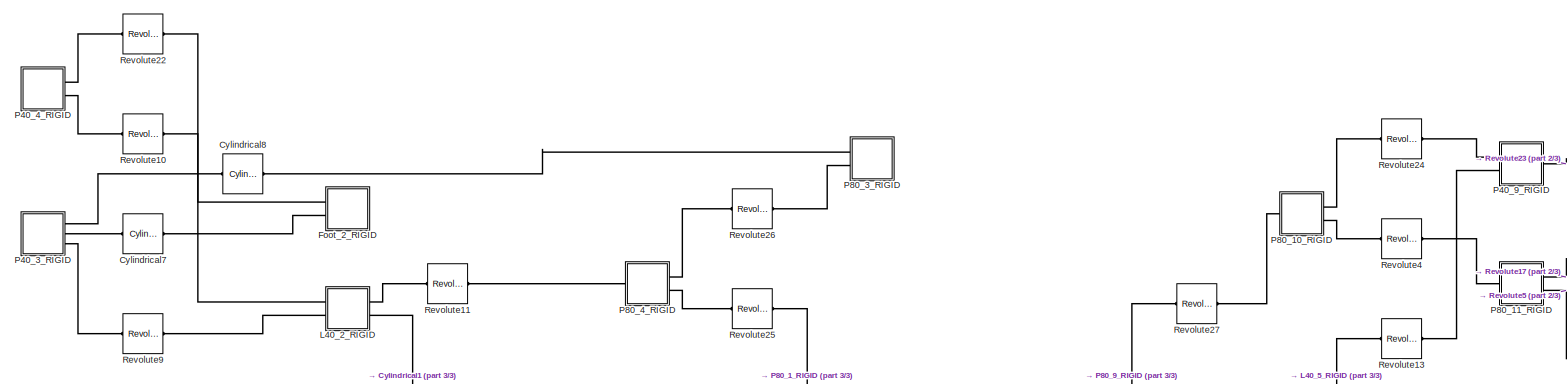
[diagram: root canvas - part 1/3, top center region]
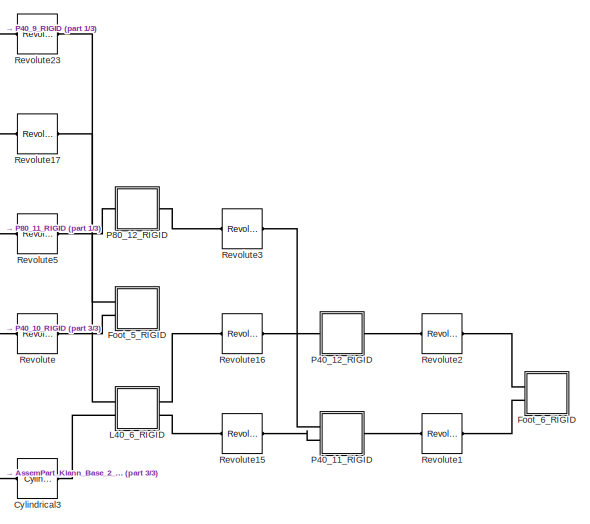
[diagram: root canvas - part 2/3, middle right region]
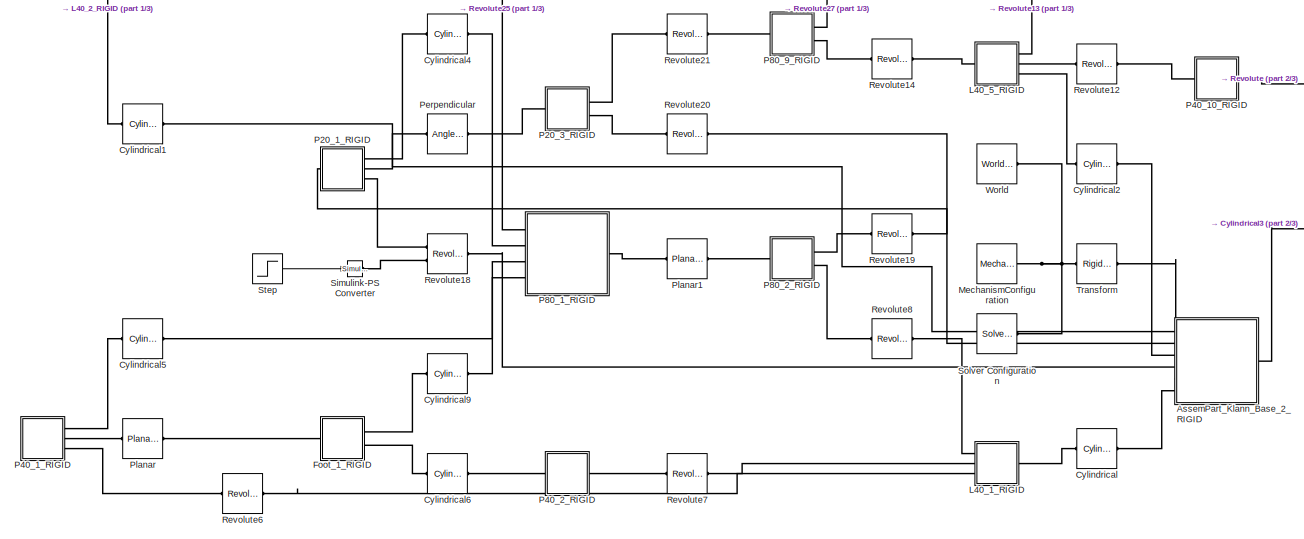
[diagram: root canvas - part 3/3, bottom center region]
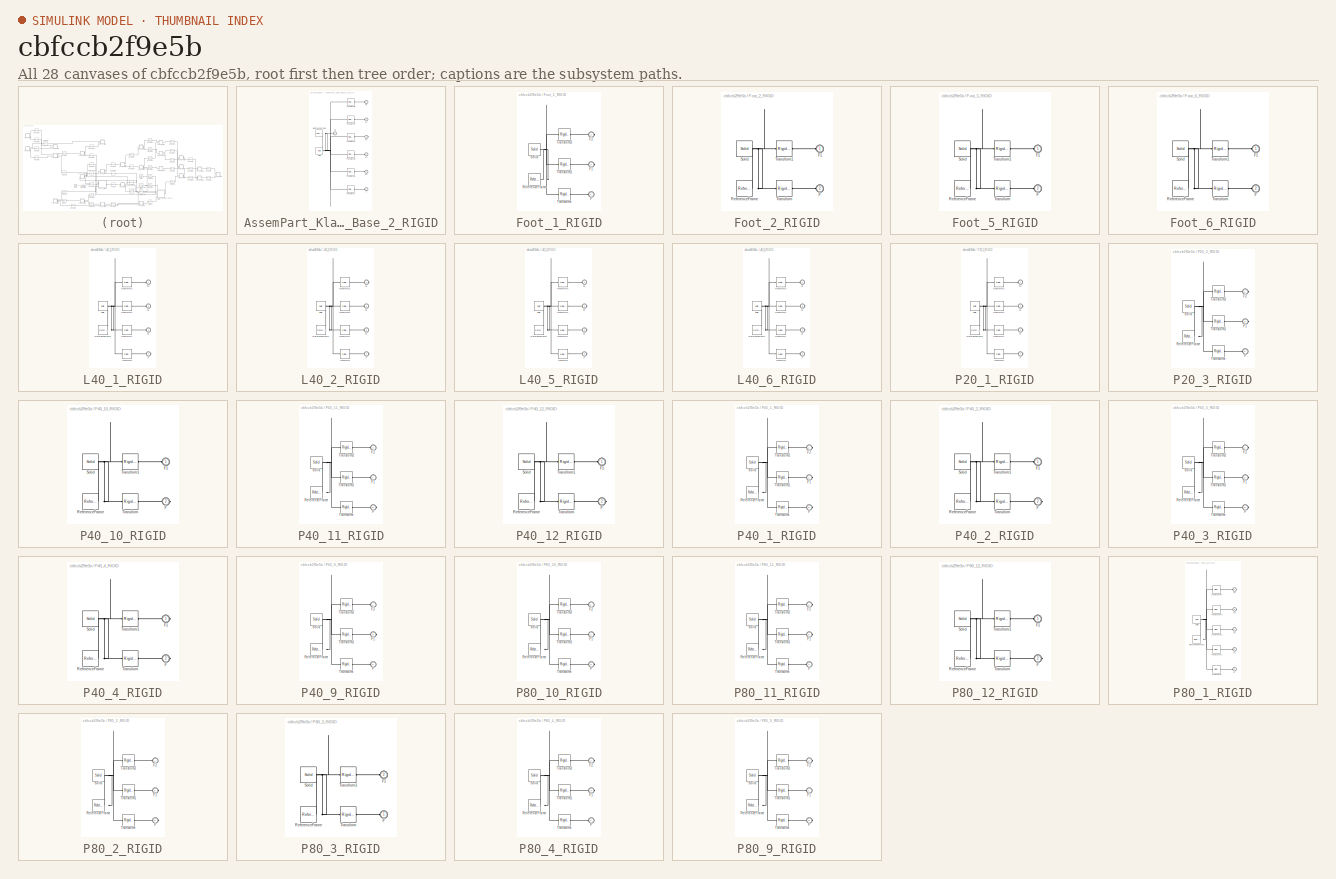
[diagram: thumbnail index - all 28 canvases of the model, root first then tree order]
MODEL slx_cbfccb2f9e5b
KIND model
CONFIG AbsTol = auto
CONFIG EnableMultiTasking = off
CONFIG FixedStep = auto
CONFIG MaxStep = auto
CONFIG MinStep = auto
CONFIG RelTol = 1e-3
CONFIG SampleTimeConstraint = Unconstrained
CONFIG Solver = VariableStepAuto
CONFIG SolverName = VariableStepAuto
CONFIG StartTime = 0.0
CONFIG StopTime = 10.0
WORKSPACE source: external: MATLAB File  (data not in archive)
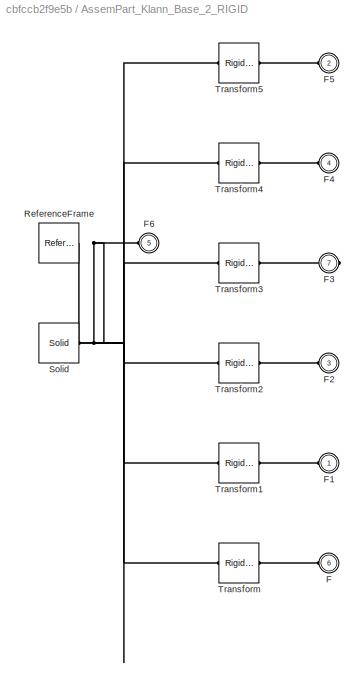
BLOCK [SubSystem] AssemPart_Klann_Base_2_RIGID
  Ports = [0, 0, 0, 0, 0, 6, 1]
  RequestExecContextInheritance = off
BLOCK [PMIOPort] AssemPart_Klann_Base_2_RIGID/F
  Port = 6
  Side = Left
BLOCK [PMIOPort] AssemPart_Klann_Base_2_RIGID/F1
  Side = Left
BLOCK [PMIOPort] AssemPart_Klann_Base_2_RIGID/F2
  Port = 3
  Side = Left
BLOCK [PMIOPort] AssemPart_Klann_Base_2_RIGID/F3
  Port = 7
  Side = Right
BLOCK [PMIOPort] AssemPart_Klann_Base_2_RIGID/F4
  Port = 4
  Side = Left
BLOCK [PMIOPort] AssemPart_Klann_Base_2_RIGID/F5
  Port = 2
  Side = Left
BLOCK [PMIOPort] AssemPart_Klann_Base_2_RIGID/F6
  Port = 5
  Side = Left
BLOCK [Reference] AssemPart_Klann_Base_2_RIGID/ReferenceFrame  REF=sm_lib/Frames and
Transforms/Reference
Frame
  Ports = [0, 0, 0, 0, 0, 0, 1]
  SourceBlock = sm_lib/Frames and\nTransforms/Reference\nFrame
  SourceProductBaseCode = MS
  SourceProductName = Simscape Multibody
  SourceType = Reference\nFrame
BLOCK [Reference] AssemPart_Klann_Base_2_RIGID/Solid  REF=sm_lib/Body Elements/Solid
  Ports = [0, 0, 0, 0, 0, 0, 1]
  SourceBlock = sm_lib/Body Elements/Solid
  SourceProductBaseCode = MS
  SourceProductName = Simscape Multibody
  SourceType = Solid
BLOCK [Reference] AssemPart_Klann_Base_2_RIGID/Transform  REF=sm_lib/Frames and
Transforms/Rigid
Transform
  Ports = [0, 0, 0, 0, 0, 1, 1]
  SourceBlock = sm_lib/Frames and\nTransforms/Rigid\nTransform
  SourceProductBaseCode = MS
  SourceProductName = Simscape Multibody
  SourceType = Rigid\nTransform
BLOCK [Reference] AssemPart_Klann_Base_2_RIGID/Transform1  REF=sm_lib/Frames and
Transforms/Rigid
Transform
  Ports = [0, 0, 0, 0, 0, 1, 1]
  SourceBlock = sm_lib/Frames and\nTransforms/Rigid\nTransform
  SourceProductBaseCode = MS
  SourceProductName = Simscape Multibody
  SourceType = Rigid\nTransform
BLOCK [Reference] AssemPart_Klann_Base_2_RIGID/Transform2  REF=sm_lib/Frames and
Transforms/Rigid
Transform
  Ports = [0, 0, 0, 0, 0, 1, 1]
  SourceBlock = sm_lib/Frames and\nTransforms/Rigid\nTransform
  SourceProductBaseCode = MS
  SourceProductName = Simscape Multibody
  SourceType = Rigid\nTransform
BLOCK [Reference] AssemPart_Klann_Base_2_RIGID/Transform3  REF=sm_lib/Frames and
Transforms/Rigid
Transform
  Ports = [0, 0, 0, 0, 0, 1, 1]
  SourceBlock = sm_lib/Frames and\nTransforms/Rigid\nTransform
  SourceProductBaseCode = MS
  SourceProductName = Simscape Multibody
  SourceType = Rigid\nTransform
BLOCK [Reference] AssemPart_Klann_Base_2_RIGID/Transform4  REF=sm_lib/Frames and
Transforms/Rigid
Transform
  Ports = [0, 0, 0, 0, 0, 1, 1]
  SourceBlock = sm_lib/Frames and\nTransforms/Rigid\nTransform
  SourceProductBaseCode = MS
  SourceProductName = Simscape Multibody
  SourceType = Rigid\nTransform
BLOCK [Reference] AssemPart_Klann_Base_2_RIGID/Transform5  REF=sm_lib/Frames and
Transforms/Rigid
Transform
  Ports = [0, 0, 0, 0, 0, 1, 1]
  SourceBlock = sm_lib/Frames and\nTransforms/Rigid\nTransform
  SourceProductBaseCode = MS
  SourceProductName = Simscape Multibody
  SourceType = Rigid\nTransform
BLOCK [Reference] Cylindrical  REF=sm_lib/Joints/Cylindrical
Joint
  Ports = [0, 0, 0, 0, 0, 1, 1]
  SourceBlock = sm_lib/Joints/Cylindrical\nJoint
  SourceProductBaseCode = MS
  SourceProductName = Simscape Multibody
  SourceType = Cylindrical\nJoint
BLOCK [Reference] Cylindrical1  REF=sm_lib/Joints/Cylindrical
Joint
  Ports = [0, 0, 0, 0, 0, 1, 1]
  SourceBlock = sm_lib/Joints/Cylindrical\nJoint
  SourceProductBaseCode = MS
  SourceProductName = Simscape Multibody
  SourceType = Cylindrical\nJoint
BLOCK [Reference] Cylindrical2  REF=sm_lib/Joints/Cylindrical
Joint
  Ports = [0, 0, 0, 0, 0, 1, 1]
  SourceBlock = sm_lib/Joints/Cylindrical\nJoint
  SourceProductBaseCode = MS
  SourceProductName = Simscape Multibody
  SourceType = Cylindrical\nJoint
BLOCK [Reference] Cylindrical3  REF=sm_lib/Joints/Cylindrical
Joint
  Ports = [0, 0, 0, 0, 0, 1, 1]
  SourceBlock = sm_lib/Joints/Cylindrical\nJoint
  SourceProductBaseCode = MS
  SourceProductName = Simscape Multibody
  SourceType = Cylindrical\nJoint
BLOCK [Reference] Cylindrical4  REF=sm_lib/Joints/Cylindrical
Joint
  Ports = [0, 0, 0, 0, 0, 1, 1]
  SourceBlock = sm_lib/Joints/Cylindrical\nJoint
  SourceProductBaseCode = MS
  SourceProductName = Simscape Multibody
  SourceType = Cylindrical\nJoint
BLOCK [Reference] Cylindrical5  REF=sm_lib/Joints/Cylindrical
Joint
  Ports = [0, 0, 0, 0, 0, 1, 1]
  SourceBlock = sm_lib/Joints/Cylindrical\nJoint
  SourceProductBaseCode = MS
  SourceProductName = Simscape Multibody
  SourceType = Cylindrical\nJoint
BLOCK [Reference] Cylindrical6  REF=sm_lib/Joints/Cylindrical
Joint
  Ports = [0, 0, 0, 0, 0, 1, 1]
  SourceBlock = sm_lib/Joints/Cylindrical\nJoint
  SourceProductBaseCode = MS
  SourceProductName = Simscape Multibody
  SourceType = Cylindrical\nJoint
BLOCK [Reference] Cylindrical7  REF=sm_lib/Joints/Cylindrical
Joint
  Ports = [0, 0, 0, 0, 0, 1, 1]
  SourceBlock = sm_lib/Joints/Cylindrical\nJoint
  SourceProductBaseCode = MS
  SourceProductName = Simscape Multibody
  SourceType = Cylindrical\nJoint
BLOCK [Reference] Cylindrical8  REF=sm_lib/Joints/Cylindrical
Joint
  Ports = [0, 0, 0, 0, 0, 1, 1]
  SourceBlock = sm_lib/Joints/Cylindrical\nJoint
  SourceProductBaseCode = MS
  SourceProductName = Simscape Multibody
  SourceType = Cylindrical\nJoint
BLOCK [Reference] Cylindrical9  REF=sm_lib/Joints/Cylindrical
Joint
  Ports = [0, 0, 0, 0, 0, 1, 1]
  SourceBlock = sm_lib/Joints/Cylindrical\nJoint
  SourceProductBaseCode = MS
  SourceProductName = Simscape Multibody
  SourceType = Cylindrical\nJoint
BLOCK [SubSystem] Foot_1_RIGID
  Ports = [0, 0, 0, 0, 0, 1, 2]
  RequestExecContextInheritance = off
BLOCK [PMIOPort] Foot_1_RIGID/F
  Side = Left
BLOCK [PMIOPort] Foot_1_RIGID/F1
  Port = 3
  Side = Right
BLOCK [PMIOPort] Foot_1_RIGID/F2
  Port = 2
  Side = Right
BLOCK [Reference] Foot_1_RIGID/ReferenceFrame  REF=sm_lib/Frames and
Transforms/Reference
Frame
  Ports = [0, 0, 0, 0, 0, 0, 1]
  SourceBlock = sm_lib/Frames and\nTransforms/Reference\nFrame
  SourceProductBaseCode = MS
  SourceProductName = Simscape Multibody
  SourceType = Reference\nFrame
BLOCK [Reference] Foot_1_RIGID/Solid  REF=sm_lib/Body Elements/Solid
  Ports = [0, 0, 0, 0, 0, 0, 1]
  SourceBlock = sm_lib/Body Elements/Solid
  SourceProductBaseCode = MS
  SourceProductName = Simscape Multibody
  SourceType = Solid
BLOCK [Reference] Foot_1_RIGID/Transform  REF=sm_lib/Frames and
Transforms/Rigid
Transform
  Ports = [0, 0, 0, 0, 0, 1, 1]
  SourceBlock = sm_lib/Frames and\nTransforms/Rigid\nTransform
  SourceProductBaseCode = MS
  SourceProductName = Simscape Multibody
  SourceType = Rigid\nTransform
BLOCK [Reference] Foot_1_RIGID/Transform1  REF=sm_lib/Frames and
Transforms/Rigid
Transform
  Ports = [0, 0, 0, 0, 0, 1, 1]
  SourceBlock = sm_lib/Frames and\nTransforms/Rigid\nTransform
  SourceProductBaseCode = MS
  SourceProductName = Simscape Multibody
  SourceType = Rigid\nTransform
BLOCK [Reference] Foot_1_RIGID/Transform2  REF=sm_lib/Frames and
Transforms/Rigid
Transform
  Ports = [0, 0, 0, 0, 0, 1, 1]
  SourceBlock = sm_lib/Frames and\nTransforms/Rigid\nTransform
  SourceProductBaseCode = MS
  SourceProductName = Simscape Multibody
  SourceType = Rigid\nTransform
BLOCK [SubSystem] Foot_2_RIGID
  Ports = [0, 0, 0, 0, 0, 2]
  RequestExecContextInheritance = off
BLOCK [PMIOPort] Foot_2_RIGID/F
  Port = 2
  Side = Left
BLOCK [PMIOPort] Foot_2_RIGID/F1
  Side = Left
BLOCK [Reference] Foot_2_RIGID/ReferenceFrame  REF=sm_lib/Frames and
Transforms/Reference
Frame
  Ports = [0, 0, 0, 0, 0, 0, 1]
  SourceBlock = sm_lib/Frames and\nTransforms/Reference\nFrame
  SourceProductBaseCode = MS
  SourceProductName = Simscape Multibody
  SourceType = Reference\nFrame
BLOCK [Reference] Foot_2_RIGID/Solid  REF=sm_lib/Body Elements/Solid
  Ports = [0, 0, 0, 0, 0, 0, 1]
  SourceBlock = sm_lib/Body Elements/Solid
  SourceProductBaseCode = MS
  SourceProductName = Simscape Multibody
  SourceType = Solid
BLOCK [Reference] Foot_2_RIGID/Transform  REF=sm_lib/Frames and
Transforms/Rigid
Transform
  Ports = [0, 0, 0, 0, 0, 1, 1]
  SourceBlock = sm_lib/Frames and\nTransforms/Rigid\nTransform
  SourceProductBaseCode = MS
  SourceProductName = Simscape Multibody
  SourceType = Rigid\nTransform
BLOCK [Reference] Foot_2_RIGID/Transform1  REF=sm_lib/Frames and
Transforms/Rigid
Transform
  Ports = [0, 0, 0, 0, 0, 1, 1]
  SourceBlock = sm_lib/Frames and\nTransforms/Rigid\nTransform
  SourceProductBaseCode = MS
  SourceProductName = Simscape Multibody
  SourceType = Rigid\nTransform
BLOCK [SubSystem] Foot_5_RIGID
  Ports = [0, 0, 0, 0, 0, 2]
  RequestExecContextInheritance = off
BLOCK [PMIOPort] Foot_5_RIGID/F
  Port = 2
  Side = Left
BLOCK [PMIOPort] Foot_5_RIGID/F1
  Side = Left
BLOCK [Reference] Foot_5_RIGID/ReferenceFrame  REF=sm_lib/Frames and
Transforms/Reference
Frame
  Ports = [0, 0, 0, 0, 0, 0, 1]
  SourceBlock = sm_lib/Frames and\nTransforms/Reference\nFrame
  SourceProductBaseCode = MS
  SourceProductName = Simscape Multibody
  SourceType = Reference\nFrame
BLOCK [Reference] Foot_5_RIGID/Solid  REF=sm_lib/Body Elements/Solid
  Ports = [0, 0, 0, 0, 0, 0, 1]
  SourceBlock = sm_lib/Body Elements/Solid
  SourceProductBaseCode = MS
  SourceProductName = Simscape Multibody
  SourceType = Solid
BLOCK [Reference] Foot_5_RIGID/Transform  REF=sm_lib/Frames and
Transforms/Rigid
Transform
  Ports = [0, 0, 0, 0, 0, 1, 1]
  SourceBlock = sm_lib/Frames and\nTransforms/Rigid\nTransform
  SourceProductBaseCode = MS
  SourceProductName = Simscape Multibody
  SourceType = Rigid\nTransform
BLOCK [Reference] Foot_5_RIGID/Transform1  REF=sm_lib/Frames and
Transforms/Rigid
Transform
  Ports = [0, 0, 0, 0, 0, 1, 1]
  SourceBlock = sm_lib/Frames and\nTransforms/Rigid\nTransform
  SourceProductBaseCode = MS
  SourceProductName = Simscape Multibody
  SourceType = Rigid\nTransform
BLOCK [SubSystem] Foot_6_RIGID
  Ports = [0, 0, 0, 0, 0, 2]
  RequestExecContextInheritance = off
BLOCK [PMIOPort] Foot_6_RIGID/F
  Port = 2
  Side = Left
BLOCK [PMIOPort] Foot_6_RIGID/F1
  Side = Left
BLOCK [Reference] Foot_6_RIGID/ReferenceFrame  REF=sm_lib/Frames and
Transforms/Reference
Frame
  Ports = [0, 0, 0, 0, 0, 0, 1]
  SourceBlock = sm_lib/Frames and\nTransforms/Reference\nFrame
  SourceProductBaseCode = MS
  SourceProductName = Simscape Multibody
  SourceType = Reference\nFrame
BLOCK [Reference] Foot_6_RIGID/Solid  REF=sm_lib/Body Elements/Solid
  Ports = [0, 0, 0, 0, 0, 0, 1]
  SourceBlock = sm_lib/Body Elements/Solid
  SourceProductBaseCode = MS
  SourceProductName = Simscape Multibody
  SourceType = Solid
BLOCK [Reference] Foot_6_RIGID/Transform  REF=sm_lib/Frames and
Transforms/Rigid
Transform
  Ports = [0, 0, 0, 0, 0, 1, 1]
  SourceBlock = sm_lib/Frames and\nTransforms/Rigid\nTransform
  SourceProductBaseCode = MS
  SourceProductName = Simscape Multibody
  SourceType = Rigid\nTransform
BLOCK [Reference] Foot_6_RIGID/Transform1  REF=sm_lib/Frames and
Transforms/Rigid
Transform
  Ports = [0, 0, 0, 0, 0, 1, 1]
  SourceBlock = sm_lib/Frames and\nTransforms/Rigid\nTransform
  SourceProductBaseCode = MS
  SourceProductName = Simscape Multibody
  SourceType = Rigid\nTransform
BLOCK [SubSystem] L40_1_RIGID
  Ports = [0, 0, 0, 0, 0, 3, 1]
  RequestExecContextInheritance = off
BLOCK [PMIOPort] L40_1_RIGID/F
  Port = 4
  Side = Right
BLOCK [PMIOPort] L40_1_RIGID/F1
  Port = 3
  Side = Left
BLOCK [PMIOPort] L40_1_RIGID/F2
  Port = 2
  Side = Left
BLOCK [PMIOPort] L40_1_RIGID/F3
  Side = Left
BLOCK [Reference] L40_1_RIGID/ReferenceFrame  REF=sm_lib/Frames and
Transforms/Reference
Frame
  Ports = [0, 0, 0, 0, 0, 0, 1]
  SourceBlock = sm_lib/Frames and\nTransforms/Reference\nFrame
  SourceProductBaseCode = MS
  SourceProductName = Simscape Multibody
  SourceType = Reference\nFrame
BLOCK [Reference] L40_1_RIGID/Solid  REF=sm_lib/Body Elements/Solid
  Ports = [0, 0, 0, 0, 0, 0, 1]
  SourceBlock = sm_lib/Body Elements/Solid
  SourceProductBaseCode = MS
  SourceProductName = Simscape Multibody
  SourceType = Solid
BLOCK [Reference] L40_1_RIGID/Transform  REF=sm_lib/Frames and
Transforms/Rigid
Transform
  Ports = [0, 0, 0, 0, 0, 1, 1]
  SourceBlock = sm_lib/Frames and\nTransforms/Rigid\nTransform
  SourceProductBaseCode = MS
  SourceProductName = Simscape Multibody
  SourceType = Rigid\nTransform
BLOCK [Reference] L40_1_RIGID/Transform1  REF=sm_lib/Frames and
Transforms/Rigid
Transform
  Ports = [0, 0, 0, 0, 0, 1, 1]
  SourceBlock = sm_lib/Frames and\nTransforms/Rigid\nTransform
  SourceProductBaseCode = MS
  SourceProductName = Simscape Multibody
  SourceType = Rigid\nTransform
BLOCK [Reference] L40_1_RIGID/Transform2  REF=sm_lib/Frames and
Transforms/Rigid
Transform
  Ports = [0, 0, 0, 0, 0, 1, 1]
  SourceBlock = sm_lib/Frames and\nTransforms/Rigid\nTransform
  SourceProductBaseCode = MS
  SourceProductName = Simscape Multibody
  SourceType = Rigid\nTransform
BLOCK [Reference] L40_1_RIGID/Transform3  REF=sm_lib/Frames and
Transforms/Rigid
Transform
  Ports = [0, 0, 0, 0, 0, 1, 1]
  SourceBlock = sm_lib/Frames and\nTransforms/Rigid\nTransform
  SourceProductBaseCode = MS
  SourceProductName = Simscape Multibody
  SourceType = Rigid\nTransform
BLOCK [SubSystem] L40_2_RIGID
  Ports = [0, 0, 0, 0, 0, 2, 2]
  RequestExecContextInheritance = off
BLOCK [PMIOPort] L40_2_RIGID/F
  Port = 4
  Side = Right
BLOCK [PMIOPort] L40_2_RIGID/F1
  Port = 2
  Side = Left
BLOCK [PMIOPort] L40_2_RIGID/F2
  Side = Left
BLOCK [PMIOPort] L40_2_RIGID/F3
  Port = 3
  Side = Right
BLOCK [Reference] L40_2_RIGID/ReferenceFrame  REF=sm_lib/Frames and
Transforms/Reference
Frame
  Ports = [0, 0, 0, 0, 0, 0, 1]
  SourceBlock = sm_lib/Frames and\nTransforms/Reference\nFrame
  SourceProductBaseCode = MS
  SourceProductName = Simscape Multibody
  SourceType = Reference\nFrame
BLOCK [Reference] L40_2_RIGID/Solid  REF=sm_lib/Body Elements/Solid
  Ports = [0, 0, 0, 0, 0, 0, 1]
  SourceBlock = sm_lib/Body Elements/Solid
  SourceProductBaseCode = MS
  SourceProductName = Simscape Multibody
  SourceType = Solid
BLOCK [Reference] L40_2_RIGID/Transform  REF=sm_lib/Frames and
Transforms/Rigid
Transform
  Ports = [0, 0, 0, 0, 0, 1, 1]
  SourceBlock = sm_lib/Frames and\nTransforms/Rigid\nTransform
  SourceProductBaseCode = MS
  SourceProductName = Simscape Multibody
  SourceType = Rigid\nTransform
BLOCK [Reference] L40_2_RIGID/Transform1  REF=sm_lib/Frames and
Transforms/Rigid
Transform
  Ports = [0, 0, 0, 0, 0, 1, 1]
  SourceBlock = sm_lib/Frames and\nTransforms/Rigid\nTransform
  SourceProductBaseCode = MS
  SourceProductName = Simscape Multibody
  SourceType = Rigid\nTransform
BLOCK [Reference] L40_2_RIGID/Transform2  REF=sm_lib/Frames and
Transforms/Rigid
Transform
  Ports = [0, 0, 0, 0, 0, 1, 1]
  SourceBlock = sm_lib/Frames and\nTransforms/Rigid\nTransform
  SourceProductBaseCode = MS
  SourceProductName = Simscape Multibody
  SourceType = Rigid\nTransform
BLOCK [Reference] L40_2_RIGID/Transform3  REF=sm_lib/Frames and
Transforms/Rigid
Transform
  Ports = [0, 0, 0, 0, 0, 1, 1]
  SourceBlock = sm_lib/Frames and\nTransforms/Rigid\nTransform
  SourceProductBaseCode = MS
  SourceProductName = Simscape Multibody
  SourceType = Rigid\nTransform
BLOCK [SubSystem] L40_5_RIGID
  Ports = [0, 0, 0, 0, 0, 1, 3]
  RequestExecContextInheritance = off
BLOCK [PMIOPort] L40_5_RIGID/F
  Port = 4
  Side = Right
BLOCK [PMIOPort] L40_5_RIGID/F1
  Port = 3
  Side = Right
BLOCK [PMIOPort] L40_5_RIGID/F2
  Port = 2
  Side = Right
BLOCK [PMIOPort] L40_5_RIGID/F3
  Side = Left
BLOCK [Reference] L40_5_RIGID/ReferenceFrame  REF=sm_lib/Frames and
Transforms/Reference
Frame
  Ports = [0, 0, 0, 0, 0, 0, 1]
  SourceBlock = sm_lib/Frames and\nTransforms/Reference\nFrame
  SourceProductBaseCode = MS
  SourceProductName = Simscape Multibody
  SourceType = Reference\nFrame
BLOCK [Reference] L40_5_RIGID/Solid  REF=sm_lib/Body Elements/Solid
  Ports = [0, 0, 0, 0, 0, 0, 1]
  SourceBlock = sm_lib/Body Elements/Solid
  SourceProductBaseCode = MS
  SourceProductName = Simscape Multibody
  SourceType = Solid
BLOCK [Reference] L40_5_RIGID/Transform  REF=sm_lib/Frames and
Transforms/Rigid
Transform
  Ports = [0, 0, 0, 0, 0, 1, 1]
  SourceBlock = sm_lib/Frames and\nTransforms/Rigid\nTransform
  SourceProductBaseCode = MS
  SourceProductName = Simscape Multibody
  SourceType = Rigid\nTransform
BLOCK [Reference] L40_5_RIGID/Transform1  REF=sm_lib/Frames and
Transforms/Rigid
Transform
  Ports = [0, 0, 0, 0, 0, 1, 1]
  SourceBlock = sm_lib/Frames and\nTransforms/Rigid\nTransform
  SourceProductBaseCode = MS
  SourceProductName = Simscape Multibody
  SourceType = Rigid\nTransform
BLOCK [Reference] L40_5_RIGID/Transform2  REF=sm_lib/Frames and
Transforms/Rigid
Transform
  Ports = [0, 0, 0, 0, 0, 1, 1]
  SourceBlock = sm_lib/Frames and\nTransforms/Rigid\nTransform
  SourceProductBaseCode = MS
  SourceProductName = Simscape Multibody
  SourceType = Rigid\nTransform
BLOCK [Reference] L40_5_RIGID/Transform3  REF=sm_lib/Frames and
Transforms/Rigid
Transform
  Ports = [0, 0, 0, 0, 0, 1, 1]
  SourceBlock = sm_lib/Frames and\nTransforms/Rigid\nTransform
  SourceProductBaseCode = MS
  SourceProductName = Simscape Multibody
  SourceType = Rigid\nTransform
BLOCK [SubSystem] L40_6_RIGID
  Ports = [0, 0, 0, 0, 0, 2, 2]
  RequestExecContextInheritance = off
BLOCK [PMIOPort] L40_6_RIGID/F
  Port = 2
  Side = Left
BLOCK [PMIOPort] L40_6_RIGID/F1
  Port = 4
  Side = Right
BLOCK [PMIOPort] L40_6_RIGID/F2
  Port = 3
  Side = Right
BLOCK [PMIOPort] L40_6_RIGID/F3
  Side = Left
BLOCK [Reference] L40_6_RIGID/ReferenceFrame  REF=sm_lib/Frames and
Transforms/Reference
Frame
  Ports = [0, 0, 0, 0, 0, 0, 1]
  SourceBlock = sm_lib/Frames and\nTransforms/Reference\nFrame
  SourceProductBaseCode = MS
  SourceProductName = Simscape Multibody
  SourceType = Reference\nFrame
BLOCK [Reference] L40_6_RIGID/Solid  REF=sm_lib/Body Elements/Solid
  Ports = [0, 0, 0, 0, 0, 0, 1]
  SourceBlock = sm_lib/Body Elements/Solid
  SourceProductBaseCode = MS
  SourceProductName = Simscape Multibody
  SourceType = Solid
BLOCK [Reference] L40_6_RIGID/Transform  REF=sm_lib/Frames and
Transforms/Rigid
Transform
  Ports = [0, 0, 0, 0, 0, 1, 1]
  SourceBlock = sm_lib/Frames and\nTransforms/Rigid\nTransform
  SourceProductBaseCode = MS
  SourceProductName = Simscape Multibody
  SourceType = Rigid\nTransform
BLOCK [Reference] L40_6_RIGID/Transform1  REF=sm_lib/Frames and
Transforms/Rigid
Transform
  Ports = [0, 0, 0, 0, 0, 1, 1]
  SourceBlock = sm_lib/Frames and\nTransforms/Rigid\nTransform
  SourceProductBaseCode = MS
  SourceProductName = Simscape Multibody
  SourceType = Rigid\nTransform
BLOCK [Reference] L40_6_RIGID/Transform2  REF=sm_lib/Frames and
Transforms/Rigid
Transform
  Ports = [0, 0, 0, 0, 0, 1, 1]
  SourceBlock = sm_lib/Frames and\nTransforms/Rigid\nTransform
  SourceProductBaseCode = MS
  SourceProductName = Simscape Multibody
  SourceType = Rigid\nTransform
BLOCK [Reference] L40_6_RIGID/Transform3  REF=sm_lib/Frames and
Transforms/Rigid
Transform
  Ports = [0, 0, 0, 0, 0, 1, 1]
  SourceBlock = sm_lib/Frames and\nTransforms/Rigid\nTransform
  SourceProductBaseCode = MS
  SourceProductName = Simscape Multibody
  SourceType = Rigid\nTransform
BLOCK [Reference] MechanismConfiguration  REF=sm_lib/Utilities/Mechanism
Configuration
  Ports = [0, 0, 0, 0, 0, 0, 1]
  SourceBlock = sm_lib/Utilities/Mechanism\nConfiguration
  SourceProductBaseCode = MS
  SourceProductName = Simscape Multibody
  SourceType = Mechanism\nConfiguration
BLOCK [SubSystem] P20_1_RIGID
  Ports = [0, 0, 0, 0, 0, 1, 3]
  RequestExecContextInheritance = off
BLOCK [PMIOPort] P20_1_RIGID/F
  Port = 4
  Side = Right
BLOCK [PMIOPort] P20_1_RIGID/F1
  Port = 3
  Side = Right
BLOCK [PMIOPort] P20_1_RIGID/F2
  Port = 2
  Side = Right
BLOCK [PMIOPort] P20_1_RIGID/F3
  Side = Left
BLOCK [Reference] P20_1_RIGID/ReferenceFrame  REF=sm_lib/Frames and
Transforms/Reference
Frame
  Ports = [0, 0, 0, 0, 0, 0, 1]
  SourceBlock = sm_lib/Frames and\nTransforms/Reference\nFrame
  SourceProductBaseCode = MS
  SourceProductName = Simscape Multibody
  SourceType = Reference\nFrame
BLOCK [Reference] P20_1_RIGID/Solid  REF=sm_lib/Body Elements/Solid
  Ports = [0, 0, 0, 0, 0, 0, 1]
  SourceBlock = sm_lib/Body Elements/Solid
  SourceProductBaseCode = MS
  SourceProductName = Simscape Multibody
  SourceType = Solid
BLOCK [Reference] P20_1_RIGID/Transform  REF=sm_lib/Frames and
Transforms/Rigid
Transform
  Ports = [0, 0, 0, 0, 0, 1, 1]
  SourceBlock = sm_lib/Frames and\nTransforms/Rigid\nTransform
  SourceProductBaseCode = MS
  SourceProductName = Simscape Multibody
  SourceType = Rigid\nTransform
BLOCK [Reference] P20_1_RIGID/Transform1  REF=sm_lib/Frames and
Transforms/Rigid
Transform
  Ports = [0, 0, 0, 0, 0, 1, 1]
  SourceBlock = sm_lib/Frames and\nTransforms/Rigid\nTransform
  SourceProductBaseCode = MS
  SourceProductName = Simscape Multibody
  SourceType = Rigid\nTransform
BLOCK [Reference] P20_1_RIGID/Transform2  REF=sm_lib/Frames and
Transforms/Rigid
Transform
  Ports = [0, 0, 0, 0, 0, 1, 1]
  SourceBlock = sm_lib/Frames and\nTransforms/Rigid\nTransform
  SourceProductBaseCode = MS
  SourceProductName = Simscape Multibody
  SourceType = Rigid\nTransform
BLOCK [Reference] P20_1_RIGID/Transform3  REF=sm_lib/Frames and
Transforms/Rigid
Transform
  Ports = [0, 0, 0, 0, 0, 1, 1]
  SourceBlock = sm_lib/Frames and\nTransforms/Rigid\nTransform
  SourceProductBaseCode = MS
  SourceProductName = Simscape Multibody
  SourceType = Rigid\nTransform
BLOCK [SubSystem] P20_3_RIGID
  Ports = [0, 0, 0, 0, 0, 1, 2]
  RequestExecContextInheritance = off
BLOCK [PMIOPort] P20_3_RIGID/F
  Side = Left
BLOCK [PMIOPort] P20_3_RIGID/F1
  Port = 3
  Side = Right
BLOCK [PMIOPort] P20_3_RIGID/F2
  Port = 2
  Side = Right
BLOCK [Reference] P20_3_RIGID/ReferenceFrame  REF=sm_lib/Frames and
Transforms/Reference
Frame
  Ports = [0, 0, 0, 0, 0, 0, 1]
  SourceBlock = sm_lib/Frames and\nTransforms/Reference\nFrame
  SourceProductBaseCode = MS
  SourceProductName = Simscape Multibody
  SourceType = Reference\nFrame
BLOCK [Reference] P20_3_RIGID/Solid  REF=sm_lib/Body Elements/Solid
  Ports = [0, 0, 0, 0, 0, 0, 1]
  SourceBlock = sm_lib/Body Elements/Solid
  SourceProductBaseCode = MS
  SourceProductName = Simscape Multibody
  SourceType = Solid
BLOCK [Reference] P20_3_RIGID/Transform  REF=sm_lib/Frames and
Transforms/Rigid
Transform
  Ports = [0, 0, 0, 0, 0, 1, 1]
  SourceBlock = sm_lib/Frames and\nTransforms/Rigid\nTransform
  SourceProductBaseCode = MS
  SourceProductName = Simscape Multibody
  SourceType = Rigid\nTransform
BLOCK [Reference] P20_3_RIGID/Transform1  REF=sm_lib/Frames and
Transforms/Rigid
Transform
  Ports = [0, 0, 0, 0, 0, 1, 1]
  SourceBlock = sm_lib/Frames and\nTransforms/Rigid\nTransform
  SourceProductBaseCode = MS
  SourceProductName = Simscape Multibody
  SourceType = Rigid\nTransform
BLOCK [Reference] P20_3_RIGID/Transform2  REF=sm_lib/Frames and
Transforms/Rigid
Transform
  Ports = [0, 0, 0, 0, 0, 1, 1]
  SourceBlock = sm_lib/Frames and\nTransforms/Rigid\nTransform
  SourceProductBaseCode = MS
  SourceProductName = Simscape Multibody
  SourceType = Rigid\nTransform
BLOCK [SubSystem] P40_10_RIGID
  Ports = [0, 0, 0, 0, 0, 1, 1]
  RequestExecContextInheritance = off
BLOCK [PMIOPort] P40_10_RIGID/F
  Port = 2
  Side = Right
BLOCK [PMIOPort] P40_10_RIGID/F1
  Side = Left
BLOCK [Reference] P40_10_RIGID/ReferenceFrame  REF=sm_lib/Frames and
Transforms/Reference
Frame
  Ports = [0, 0, 0, 0, 0, 0, 1]
  SourceBlock = sm_lib/Frames and\nTransforms/Reference\nFrame
  SourceProductBaseCode = MS
  SourceProductName = Simscape Multibody
  SourceType = Reference\nFrame
BLOCK [Reference] P40_10_RIGID/Solid  REF=sm_lib/Body Elements/Solid
  Ports = [0, 0, 0, 0, 0, 0, 1]
  SourceBlock = sm_lib/Body Elements/Solid
  SourceProductBaseCode = MS
  SourceProductName = Simscape Multibody
  SourceType = Solid
BLOCK [Reference] P40_10_RIGID/Transform  REF=sm_lib/Frames and
Transforms/Rigid
Transform
  Ports = [0, 0, 0, 0, 0, 1, 1]
  SourceBlock = sm_lib/Frames and\nTransforms/Rigid\nTransform
  SourceProductBaseCode = MS
  SourceProductName = Simscape Multibody
  SourceType = Rigid\nTransform
BLOCK [Reference] P40_10_RIGID/Transform1  REF=sm_lib/Frames and
Transforms/Rigid
Transform
  Ports = [0, 0, 0, 0, 0, 1, 1]
  SourceBlock = sm_lib/Frames and\nTransforms/Rigid\nTransform
  SourceProductBaseCode = MS
  SourceProductName = Simscape Multibody
  SourceType = Rigid\nTransform
BLOCK [SubSystem] P40_11_RIGID
  Ports = [0, 0, 0, 0, 0, 2, 1]
  RequestExecContextInheritance = off
BLOCK [PMIOPort] P40_11_RIGID/F
  Port = 3
  Side = Right
BLOCK [PMIOPort] P40_11_RIGID/F1
  Side = Left
BLOCK [PMIOPort] P40_11_RIGID/F2
  Port = 2
  Side = Left
BLOCK [Reference] P40_11_RIGID/ReferenceFrame  REF=sm_lib/Frames and
Transforms/Reference
Frame
  Ports = [0, 0, 0, 0, 0, 0, 1]
  SourceBlock = sm_lib/Frames and\nTransforms/Reference\nFrame
  SourceProductBaseCode = MS
  SourceProductName = Simscape Multibody
  SourceType = Reference\nFrame
BLOCK [Reference] P40_11_RIGID/Solid  REF=sm_lib/Body Elements/Solid
  Ports = [0, 0, 0, 0, 0, 0, 1]
  SourceBlock = sm_lib/Body Elements/Solid
  SourceProductBaseCode = MS
  SourceProductName = Simscape Multibody
  SourceType = Solid
BLOCK [Reference] P40_11_RIGID/Transform  REF=sm_lib/Frames and
Transforms/Rigid
Transform
  Ports = [0, 0, 0, 0, 0, 1, 1]
  SourceBlock = sm_lib/Frames and\nTransforms/Rigid\nTransform
  SourceProductBaseCode = MS
  SourceProductName = Simscape Multibody
  SourceType = Rigid\nTransform
BLOCK [Reference] P40_11_RIGID/Transform1  REF=sm_lib/Frames and
Transforms/Rigid
Transform
  Ports = [0, 0, 0, 0, 0, 1, 1]
  SourceBlock = sm_lib/Frames and\nTransforms/Rigid\nTransform
  SourceProductBaseCode = MS
  SourceProductName = Simscape Multibody
  SourceType = Rigid\nTransform
BLOCK [Reference] P40_11_RIGID/Transform2  REF=sm_lib/Frames and
Transforms/Rigid
Transform
  Ports = [0, 0, 0, 0, 0, 1, 1]
  SourceBlock = sm_lib/Frames and\nTransforms/Rigid\nTransform
  SourceProductBaseCode = MS
  SourceProductName = Simscape Multibody
  SourceType = Rigid\nTransform
BLOCK [SubSystem] P40_12_RIGID
  Ports = [0, 0, 0, 0, 0, 1, 1]
  RequestExecContextInheritance = off
BLOCK [PMIOPort] P40_12_RIGID/F
  Port = 2
  Side = Right
BLOCK [PMIOPort] P40_12_RIGID/F1
  Side = Left
BLOCK [Reference] P40_12_RIGID/ReferenceFrame  REF=sm_lib/Frames and
Transforms/Reference
Frame
  Ports = [0, 0, 0, 0, 0, 0, 1]
  SourceBlock = sm_lib/Frames and\nTransforms/Reference\nFrame
  SourceProductBaseCode = MS
  SourceProductName = Simscape Multibody
  SourceType = Reference\nFrame
BLOCK [Reference] P40_12_RIGID/Solid  REF=sm_lib/Body Elements/Solid
  Ports = [0, 0, 0, 0, 0, 0, 1]
  SourceBlock = sm_lib/Body Elements/Solid
  SourceProductBaseCode = MS
  SourceProductName = Simscape Multibody
  SourceType = Solid
BLOCK [Reference] P40_12_RIGID/Transform  REF=sm_lib/Frames and
Transforms/Rigid
Transform
  Ports = [0, 0, 0, 0, 0, 1, 1]
  SourceBlock = sm_lib/Frames and\nTransforms/Rigid\nTransform
  SourceProductBaseCode = MS
  SourceProductName = Simscape Multibody
  SourceType = Rigid\nTransform
BLOCK [Reference] P40_12_RIGID/Transform1  REF=sm_lib/Frames and
Transforms/Rigid
Transform
  Ports = [0, 0, 0, 0, 0, 1, 1]
  SourceBlock = sm_lib/Frames and\nTransforms/Rigid\nTransform
  SourceProductBaseCode = MS
  SourceProductName = Simscape Multibody
  SourceType = Rigid\nTransform
BLOCK [SubSystem] P40_1_RIGID
  Ports = [0, 0, 0, 0, 0, 0, 3]
  RequestExecContextInheritance = off
BLOCK [PMIOPort] P40_1_RIGID/F
  Port = 3
  Side = Right
BLOCK [PMIOPort] P40_1_RIGID/F1
  Port = 2
  Side = Right
BLOCK [PMIOPort] P40_1_RIGID/F2
  Side = Right
BLOCK [Reference] P40_1_RIGID/ReferenceFrame  REF=sm_lib/Frames and
Transforms/Reference
Frame
  Ports = [0, 0, 0, 0, 0, 0, 1]
  SourceBlock = sm_lib/Frames and\nTransforms/Reference\nFrame
  SourceProductBaseCode = MS
  SourceProductName = Simscape Multibody
  SourceType = Reference\nFrame
BLOCK [Reference] P40_1_RIGID/Solid  REF=sm_lib/Body Elements/Solid
  Ports = [0, 0, 0, 0, 0, 0, 1]
  SourceBlock = sm_lib/Body Elements/Solid
  SourceProductBaseCode = MS
  SourceProductName = Simscape Multibody
  SourceType = Solid
BLOCK [Reference] P40_1_RIGID/Transform  REF=sm_lib/Frames and
Transforms/Rigid
Transform
  Ports = [0, 0, 0, 0, 0, 1, 1]
  SourceBlock = sm_lib/Frames and\nTransforms/Rigid\nTransform
  SourceProductBaseCode = MS
  SourceProductName = Simscape Multibody
  SourceType = Rigid\nTransform
BLOCK [Reference] P40_1_RIGID/Transform1  REF=sm_lib/Frames and
Transforms/Rigid
Transform
  Ports = [0, 0, 0, 0, 0, 1, 1]
  SourceBlock = sm_lib/Frames and\nTransforms/Rigid\nTransform
  SourceProductBaseCode = MS
  SourceProductName = Simscape Multibody
  SourceType = Rigid\nTransform
BLOCK [Reference] P40_1_RIGID/Transform2  REF=sm_lib/Frames and
Transforms/Rigid
Transform
  Ports = [0, 0, 0, 0, 0, 1, 1]
  SourceBlock = sm_lib/Frames and\nTransforms/Rigid\nTransform
  SourceProductBaseCode = MS
  SourceProductName = Simscape Multibody
  SourceType = Rigid\nTransform
BLOCK [SubSystem] P40_2_RIGID
  Ports = [0, 0, 0, 0, 0, 1, 1]
  RequestExecContextInheritance = off
BLOCK [PMIOPort] P40_2_RIGID/F
  Port = 2
  Side = Right
BLOCK [PMIOPort] P40_2_RIGID/F1
  Side = Left
BLOCK [Reference] P40_2_RIGID/ReferenceFrame  REF=sm_lib/Frames and
Transforms/Reference
Frame
  Ports = [0, 0, 0, 0, 0, 0, 1]
  SourceBlock = sm_lib/Frames and\nTransforms/Reference\nFrame
  SourceProductBaseCode = MS
  SourceProductName = Simscape Multibody
  SourceType = Reference\nFrame
BLOCK [Reference] P40_2_RIGID/Solid  REF=sm_lib/Body Elements/Solid
  Ports = [0, 0, 0, 0, 0, 0, 1]
  SourceBlock = sm_lib/Body Elements/Solid
  SourceProductBaseCode = MS
  SourceProductName = Simscape Multibody
  SourceType = Solid
BLOCK [Reference] P40_2_RIGID/Transform  REF=sm_lib/Frames and
Transforms/Rigid
Transform
  Ports = [0, 0, 0, 0, 0, 1, 1]
  SourceBlock = sm_lib/Frames and\nTransforms/Rigid\nTransform
  SourceProductBaseCode = MS
  SourceProductName = Simscape Multibody
  SourceType = Rigid\nTransform
BLOCK [Reference] P40_2_RIGID/Transform1  REF=sm_lib/Frames and
Transforms/Rigid
Transform
  Ports = [0, 0, 0, 0, 0, 1, 1]
  SourceBlock = sm_lib/Frames and\nTransforms/Rigid\nTransform
  SourceProductBaseCode = MS
  SourceProductName = Simscape Multibody
  SourceType = Rigid\nTransform
BLOCK [SubSystem] P40_3_RIGID
  Ports = [0, 0, 0, 0, 0, 0, 3]
  RequestExecContextInheritance = off
BLOCK [PMIOPort] P40_3_RIGID/F
  Port = 3
  Side = Right
BLOCK [PMIOPort] P40_3_RIGID/F1
  Port = 2
  Side = Right
BLOCK [PMIOPort] P40_3_RIGID/F2
  Side = Right
BLOCK [Reference] P40_3_RIGID/ReferenceFrame  REF=sm_lib/Frames and
Transforms/Reference
Frame
  Ports = [0, 0, 0, 0, 0, 0, 1]
  SourceBlock = sm_lib/Frames and\nTransforms/Reference\nFrame
  SourceProductBaseCode = MS
  SourceProductName = Simscape Multibody
  SourceType = Reference\nFrame
BLOCK [Reference] P40_3_RIGID/Solid  REF=sm_lib/Body Elements/Solid
  Ports = [0, 0, 0, 0, 0, 0, 1]
  SourceBlock = sm_lib/Body Elements/Solid
  SourceProductBaseCode = MS
  SourceProductName = Simscape Multibody
  SourceType = Solid
BLOCK [Reference] P40_3_RIGID/Transform  REF=sm_lib/Frames and
Transforms/Rigid
Transform
  Ports = [0, 0, 0, 0, 0, 1, 1]
  SourceBlock = sm_lib/Frames and\nTransforms/Rigid\nTransform
  SourceProductBaseCode = MS
  SourceProductName = Simscape Multibody
  SourceType = Rigid\nTransform
BLOCK [Reference] P40_3_RIGID/Transform1  REF=sm_lib/Frames and
Transforms/Rigid
Transform
  Ports = [0, 0, 0, 0, 0, 1, 1]
  SourceBlock = sm_lib/Frames and\nTransforms/Rigid\nTransform
  SourceProductBaseCode = MS
  SourceProductName = Simscape Multibody
  SourceType = Rigid\nTransform
BLOCK [Reference] P40_3_RIGID/Transform2  REF=sm_lib/Frames and
Transforms/Rigid
Transform
  Ports = [0, 0, 0, 0, 0, 1, 1]
  SourceBlock = sm_lib/Frames and\nTransforms/Rigid\nTransform
  SourceProductBaseCode = MS
  SourceProductName = Simscape Multibody
  SourceType = Rigid\nTransform
BLOCK [SubSystem] P40_4_RIGID
  Ports = [0, 0, 0, 0, 0, 0, 2]
  RequestExecContextInheritance = off
BLOCK [PMIOPort] P40_4_RIGID/F
  Port = 2
  Side = Right
BLOCK [PMIOPort] P40_4_RIGID/F1
  Side = Right
BLOCK [Reference] P40_4_RIGID/ReferenceFrame  REF=sm_lib/Frames and
Transforms/Reference
Frame
  Ports = [0, 0, 0, 0, 0, 0, 1]
  SourceBlock = sm_lib/Frames and\nTransforms/Reference\nFrame
  SourceProductBaseCode = MS
  SourceProductName = Simscape Multibody
  SourceType = Reference\nFrame
BLOCK [Reference] P40_4_RIGID/Solid  REF=sm_lib/Body Elements/Solid
  Ports = [0, 0, 0, 0, 0, 0, 1]
  SourceBlock = sm_lib/Body Elements/Solid
  SourceProductBaseCode = MS
  SourceProductName = Simscape Multibody
  SourceType = Solid
BLOCK [Reference] P40_4_RIGID/Transform  REF=sm_lib/Frames and
Transforms/Rigid
Transform
  Ports = [0, 0, 0, 0, 0, 1, 1]
  SourceBlock = sm_lib/Frames and\nTransforms/Rigid\nTransform
  SourceProductBaseCode = MS
  SourceProductName = Simscape Multibody
  SourceType = Rigid\nTransform
BLOCK [Reference] P40_4_RIGID/Transform1  REF=sm_lib/Frames and
Transforms/Rigid
Transform
  Ports = [0, 0, 0, 0, 0, 1, 1]
  SourceBlock = sm_lib/Frames and\nTransforms/Rigid\nTransform
  SourceProductBaseCode = MS
  SourceProductName = Simscape Multibody
  SourceType = Rigid\nTransform
BLOCK [SubSystem] P40_9_RIGID
  Ports = [0, 0, 0, 0, 0, 2, 1]
  RequestExecContextInheritance = off
BLOCK [PMIOPort] P40_9_RIGID/F
  Port = 2
  Side = Left
BLOCK [PMIOPort] P40_9_RIGID/F1
  Port = 3
  Side = Right
BLOCK [PMIOPort] P40_9_RIGID/F2
  Side = Left
BLOCK [Reference] P40_9_RIGID/ReferenceFrame  REF=sm_lib/Frames and
Transforms/Reference
Frame
  Ports = [0, 0, 0, 0, 0, 0, 1]
  SourceBlock = sm_lib/Frames and\nTransforms/Reference\nFrame
  SourceProductBaseCode = MS
  SourceProductName = Simscape Multibody
  SourceType = Reference\nFrame
BLOCK [Reference] P40_9_RIGID/Solid  REF=sm_lib/Body Elements/Solid
  Ports = [0, 0, 0, 0, 0, 0, 1]
  SourceBlock = sm_lib/Body Elements/Solid
  SourceProductBaseCode = MS
  SourceProductName = Simscape Multibody
  SourceType = Solid
BLOCK [Reference] P40_9_RIGID/Transform  REF=sm_lib/Frames and
Transforms/Rigid
Transform
  Ports = [0, 0, 0, 0, 0, 1, 1]
  SourceBlock = sm_lib/Frames and\nTransforms/Rigid\nTransform
  SourceProductBaseCode = MS
  SourceProductName = Simscape Multibody
  SourceType = Rigid\nTransform
BLOCK [Reference] P40_9_RIGID/Transform1  REF=sm_lib/Frames and
Transforms/Rigid
Transform
  Ports = [0, 0, 0, 0, 0, 1, 1]
  SourceBlock = sm_lib/Frames and\nTransforms/Rigid\nTransform
  SourceProductBaseCode = MS
  SourceProductName = Simscape Multibody
  SourceType = Rigid\nTransform
BLOCK [Reference] P40_9_RIGID/Transform2  REF=sm_lib/Frames and
Transforms/Rigid
Transform
  Ports = [0, 0, 0, 0, 0, 1, 1]
  SourceBlock = sm_lib/Frames and\nTransforms/Rigid\nTransform
  SourceProductBaseCode = MS
  SourceProductName = Simscape Multibody
  SourceType = Rigid\nTransform
BLOCK [SubSystem] P80_10_RIGID
  Ports = [0, 0, 0, 0, 0, 1, 2]
  RequestExecContextInheritance = off
BLOCK [PMIOPort] P80_10_RIGID/F
  Port = 3
  Side = Right
BLOCK [PMIOPort] P80_10_RIGID/F1
  Port = 2
  Side = Right
BLOCK [PMIOPort] P80_10_RIGID/F2
  Side = Left
BLOCK [Reference] P80_10_RIGID/ReferenceFrame  REF=sm_lib/Frames and
Transforms/Reference
Frame
  Ports = [0, 0, 0, 0, 0, 0, 1]
  SourceBlock = sm_lib/Frames and\nTransforms/Reference\nFrame
  SourceProductBaseCode = MS
  SourceProductName = Simscape Multibody
  SourceType = Reference\nFrame
BLOCK [Reference] P80_10_RIGID/Solid  REF=sm_lib/Body Elements/Solid
  Ports = [0, 0, 0, 0, 0, 0, 1]
  SourceBlock = sm_lib/Body Elements/Solid
  SourceProductBaseCode = MS
  SourceProductName = Simscape Multibody
  SourceType = Solid
BLOCK [Reference] P80_10_RIGID/Transform  REF=sm_lib/Frames and
Transforms/Rigid
Transform
  Ports = [0, 0, 0, 0, 0, 1, 1]
  SourceBlock = sm_lib/Frames and\nTransforms/Rigid\nTransform
  SourceProductBaseCode = MS
  SourceProductName = Simscape Multibody
  SourceType = Rigid\nTransform
BLOCK [Reference] P80_10_RIGID/Transform1  REF=sm_lib/Frames and
Transforms/Rigid
Transform
  Ports = [0, 0, 0, 0, 0, 1, 1]
  SourceBlock = sm_lib/Frames and\nTransforms/Rigid\nTransform
  SourceProductBaseCode = MS
  SourceProductName = Simscape Multibody
  SourceType = Rigid\nTransform
BLOCK [Reference] P80_10_RIGID/Transform2  REF=sm_lib/Frames and
Transforms/Rigid
Transform
  Ports = [0, 0, 0, 0, 0, 1, 1]
  SourceBlock = sm_lib/Frames and\nTransforms/Rigid\nTransform
  SourceProductBaseCode = MS
  SourceProductName = Simscape Multibody
  SourceType = Rigid\nTransform
BLOCK [SubSystem] P80_11_RIGID
  Ports = [0, 0, 0, 0, 0, 1, 2]
  RequestExecContextInheritance = off
BLOCK [PMIOPort] P80_11_RIGID/F
  Side = Left
BLOCK [PMIOPort] P80_11_RIGID/F1
  Port = 3
  Side = Right
BLOCK [PMIOPort] P80_11_RIGID/F2
  Port = 2
  Side = Right
BLOCK [Reference] P80_11_RIGID/ReferenceFrame  REF=sm_lib/Frames and
Transforms/Reference
Frame
  Ports = [0, 0, 0, 0, 0, 0, 1]
  SourceBlock = sm_lib/Frames and\nTransforms/Reference\nFrame
  SourceProductBaseCode = MS
  SourceProductName = Simscape Multibody
  SourceType = Reference\nFrame
BLOCK [Reference] P80_11_RIGID/Solid  REF=sm_lib/Body Elements/Solid
  Ports = [0, 0, 0, 0, 0, 0, 1]
  SourceBlock = sm_lib/Body Elements/Solid
  SourceProductBaseCode = MS
  SourceProductName = Simscape Multibody
  SourceType = Solid
BLOCK [Reference] P80_11_RIGID/Transform  REF=sm_lib/Frames and
Transforms/Rigid
Transform
  Ports = [0, 0, 0, 0, 0, 1, 1]
  SourceBlock = sm_lib/Frames and\nTransforms/Rigid\nTransform
  SourceProductBaseCode = MS
  SourceProductName = Simscape Multibody
  SourceType = Rigid\nTransform
BLOCK [Reference] P80_11_RIGID/Transform1  REF=sm_lib/Frames and
Transforms/Rigid
Transform
  Ports = [0, 0, 0, 0, 0, 1, 1]
  SourceBlock = sm_lib/Frames and\nTransforms/Rigid\nTransform
  SourceProductBaseCode = MS
  SourceProductName = Simscape Multibody
  SourceType = Rigid\nTransform
BLOCK [Reference] P80_11_RIGID/Transform2  REF=sm_lib/Frames and
Transforms/Rigid
Transform
  Ports = [0, 0, 0, 0, 0, 1, 1]
  SourceBlock = sm_lib/Frames and\nTransforms/Rigid\nTransform
  SourceProductBaseCode = MS
  SourceProductName = Simscape Multibody
  SourceType = Rigid\nTransform
BLOCK [SubSystem] P80_12_RIGID
  Ports = [0, 0, 0, 0, 0, 1, 1]
  RequestExecContextInheritance = off
BLOCK [PMIOPort] P80_12_RIGID/F
  Port = 2
  Side = Right
BLOCK [PMIOPort] P80_12_RIGID/F1
  Side = Left
BLOCK [Reference] P80_12_RIGID/ReferenceFrame  REF=sm_lib/Frames and
Transforms/Reference
Frame
  Ports = [0, 0, 0, 0, 0, 0, 1]
  SourceBlock = sm_lib/Frames and\nTransforms/Reference\nFrame
  SourceProductBaseCode = MS
  SourceProductName = Simscape Multibody
  SourceType = Reference\nFrame
BLOCK [Reference] P80_12_RIGID/Solid  REF=sm_lib/Body Elements/Solid
  Ports = [0, 0, 0, 0, 0, 0, 1]
  SourceBlock = sm_lib/Body Elements/Solid
  SourceProductBaseCode = MS
  SourceProductName = Simscape Multibody
  SourceType = Solid
BLOCK [Reference] P80_12_RIGID/Transform  REF=sm_lib/Frames and
Transforms/Rigid
Transform
  Ports = [0, 0, 0, 0, 0, 1, 1]
  SourceBlock = sm_lib/Frames and\nTransforms/Rigid\nTransform
  SourceProductBaseCode = MS
  SourceProductName = Simscape Multibody
  SourceType = Rigid\nTransform
BLOCK [Reference] P80_12_RIGID/Transform1  REF=sm_lib/Frames and
Transforms/Rigid
Transform
  Ports = [0, 0, 0, 0, 0, 1, 1]
  SourceBlock = sm_lib/Frames and\nTransforms/Rigid\nTransform
  SourceProductBaseCode = MS
  SourceProductName = Simscape Multibody
  SourceType = Rigid\nTransform
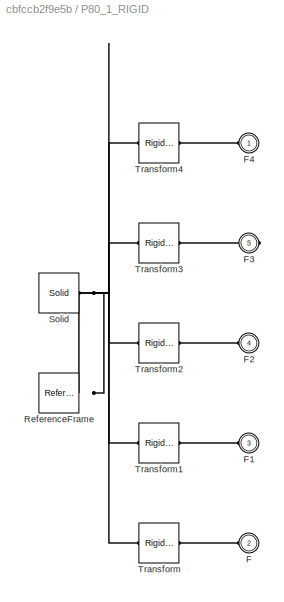
BLOCK [SubSystem] P80_1_RIGID
  Ports = [0, 0, 0, 0, 0, 4, 1]
  RequestExecContextInheritance = off
BLOCK [PMIOPort] P80_1_RIGID/F
  Port = 2
  Side = Left
BLOCK [PMIOPort] P80_1_RIGID/F1
  Port = 3
  Side = Left
BLOCK [PMIOPort] P80_1_RIGID/F2
  Port = 4
  Side = Left
BLOCK [PMIOPort] P80_1_RIGID/F3
  Port = 5
  Side = Right
BLOCK [PMIOPort] P80_1_RIGID/F4
  Side = Left
BLOCK [Reference] P80_1_RIGID/ReferenceFrame  REF=sm_lib/Frames and
Transforms/Reference
Frame
  Ports = [0, 0, 0, 0, 0, 0, 1]
  SourceBlock = sm_lib/Frames and\nTransforms/Reference\nFrame
  SourceProductBaseCode = MS
  SourceProductName = Simscape Multibody
  SourceType = Reference\nFrame
BLOCK [Reference] P80_1_RIGID/Solid  REF=sm_lib/Body Elements/Solid
  Ports = [0, 0, 0, 0, 0, 0, 1]
  SourceBlock = sm_lib/Body Elements/Solid
  SourceProductBaseCode = MS
  SourceProductName = Simscape Multibody
  SourceType = Solid
BLOCK [Reference] P80_1_RIGID/Transform  REF=sm_lib/Frames and
Transforms/Rigid
Transform
  Ports = [0, 0, 0, 0, 0, 1, 1]
  SourceBlock = sm_lib/Frames and\nTransforms/Rigid\nTransform
  SourceProductBaseCode = MS
  SourceProductName = Simscape Multibody
  SourceType = Rigid\nTransform
BLOCK [Reference] P80_1_RIGID/Transform1  REF=sm_lib/Frames and
Transforms/Rigid
Transform
  Ports = [0, 0, 0, 0, 0, 1, 1]
  SourceBlock = sm_lib/Frames and\nTransforms/Rigid\nTransform
  SourceProductBaseCode = MS
  SourceProductName = Simscape Multibody
  SourceType = Rigid\nTransform
BLOCK [Reference] P80_1_RIGID/Transform2  REF=sm_lib/Frames and
Transforms/Rigid
Transform
  Ports = [0, 0, 0, 0, 0, 1, 1]
  SourceBlock = sm_lib/Frames and\nTransforms/Rigid\nTransform
  SourceProductBaseCode = MS
  SourceProductName = Simscape Multibody
  SourceType = Rigid\nTransform
BLOCK [Reference] P80_1_RIGID/Transform3  REF=sm_lib/Frames and
Transforms/Rigid
Transform
  Ports = [0, 0, 0, 0, 0, 1, 1]
  SourceBlock = sm_lib/Frames and\nTransforms/Rigid\nTransform
  SourceProductBaseCode = MS
  SourceProductName = Simscape Multibody
  SourceType = Rigid\nTransform
BLOCK [Reference] P80_1_RIGID/Transform4  REF=sm_lib/Frames and
Transforms/Rigid
Transform
  Ports = [0, 0, 0, 0, 0, 1, 1]
  SourceBlock = sm_lib/Frames and\nTransforms/Rigid\nTransform
  SourceProductBaseCode = MS
  SourceProductName = Simscape Multibody
  SourceType = Rigid\nTransform
BLOCK [SubSystem] P80_2_RIGID
  Ports = [0, 0, 0, 0, 0, 1, 2]
  RequestExecContextInheritance = off
BLOCK [PMIOPort] P80_2_RIGID/F
  Port = 3
  Side = Right
BLOCK [PMIOPort] P80_2_RIGID/F1
  Port = 2
  Side = Right
BLOCK [PMIOPort] P80_2_RIGID/F2
  Side = Left
BLOCK [Reference] P80_2_RIGID/ReferenceFrame  REF=sm_lib/Frames and
Transforms/Reference
Frame
  Ports = [0, 0, 0, 0, 0, 0, 1]
  SourceBlock = sm_lib/Frames and\nTransforms/Reference\nFrame
  SourceProductBaseCode = MS
  SourceProductName = Simscape Multibody
  SourceType = Reference\nFrame
BLOCK [Reference] P80_2_RIGID/Solid  REF=sm_lib/Body Elements/Solid
  Ports = [0, 0, 0, 0, 0, 0, 1]
  SourceBlock = sm_lib/Body Elements/Solid
  SourceProductBaseCode = MS
  SourceProductName = Simscape Multibody
  SourceType = Solid
BLOCK [Reference] P80_2_RIGID/Transform  REF=sm_lib/Frames and
Transforms/Rigid
Transform
  Ports = [0, 0, 0, 0, 0, 1, 1]
  SourceBlock = sm_lib/Frames and\nTransforms/Rigid\nTransform
  SourceProductBaseCode = MS
  SourceProductName = Simscape Multibody
  SourceType = Rigid\nTransform
BLOCK [Reference] P80_2_RIGID/Transform1  REF=sm_lib/Frames and
Transforms/Rigid
Transform
  Ports = [0, 0, 0, 0, 0, 1, 1]
  SourceBlock = sm_lib/Frames and\nTransforms/Rigid\nTransform
  SourceProductBaseCode = MS
  SourceProductName = Simscape Multibody
  SourceType = Rigid\nTransform
BLOCK [Reference] P80_2_RIGID/Transform2  REF=sm_lib/Frames and
Transforms/Rigid
Transform
  Ports = [0, 0, 0, 0, 0, 1, 1]
  SourceBlock = sm_lib/Frames and\nTransforms/Rigid\nTransform
  SourceProductBaseCode = MS
  SourceProductName = Simscape Multibody
  SourceType = Rigid\nTransform
BLOCK [SubSystem] P80_3_RIGID
  Ports = [0, 0, 0, 0, 0, 2]
  RequestExecContextInheritance = off
BLOCK [PMIOPort] P80_3_RIGID/F
  Side = Left
BLOCK [PMIOPort] P80_3_RIGID/F1
  Port = 2
  Side = Left
BLOCK [Reference] P80_3_RIGID/ReferenceFrame  REF=sm_lib/Frames and
Transforms/Reference
Frame
  Ports = [0, 0, 0, 0, 0, 0, 1]
  SourceBlock = sm_lib/Frames and\nTransforms/Reference\nFrame
  SourceProductBaseCode = MS
  SourceProductName = Simscape Multibody
  SourceType = Reference\nFrame
BLOCK [Reference] P80_3_RIGID/Solid  REF=sm_lib/Body Elements/Solid
  Ports = [0, 0, 0, 0, 0, 0, 1]
  SourceBlock = sm_lib/Body Elements/Solid
  SourceProductBaseCode = MS
  SourceProductName = Simscape Multibody
  SourceType = Solid
BLOCK [Reference] P80_3_RIGID/Transform  REF=sm_lib/Frames and
Transforms/Rigid
Transform
  Ports = [0, 0, 0, 0, 0, 1, 1]
  SourceBlock = sm_lib/Frames and\nTransforms/Rigid\nTransform
  SourceProductBaseCode = MS
  SourceProductName = Simscape Multibody
  SourceType = Rigid\nTransform
BLOCK [Reference] P80_3_RIGID/Transform1  REF=sm_lib/Frames and
Transforms/Rigid
Transform
  Ports = [0, 0, 0, 0, 0, 1, 1]
  SourceBlock = sm_lib/Frames and\nTransforms/Rigid\nTransform
  SourceProductBaseCode = MS
  SourceProductName = Simscape Multibody
  SourceType = Rigid\nTransform
BLOCK [SubSystem] P80_4_RIGID
  Ports = [0, 0, 0, 0, 0, 1, 2]
  RequestExecContextInheritance = off
BLOCK [PMIOPort] P80_4_RIGID/F
  Side = Left
BLOCK [PMIOPort] P80_4_RIGID/F1
  Port = 3
  Side = Right
BLOCK [PMIOPort] P80_4_RIGID/F2
  Port = 2
  Side = Right
BLOCK [Reference] P80_4_RIGID/ReferenceFrame  REF=sm_lib/Frames and
Transforms/Reference
Frame
  Ports = [0, 0, 0, 0, 0, 0, 1]
  SourceBlock = sm_lib/Frames and\nTransforms/Reference\nFrame
  SourceProductBaseCode = MS
  SourceProductName = Simscape Multibody
  SourceType = Reference\nFrame
BLOCK [Reference] P80_4_RIGID/Solid  REF=sm_lib/Body Elements/Solid
  Ports = [0, 0, 0, 0, 0, 0, 1]
  SourceBlock = sm_lib/Body Elements/Solid
  SourceProductBaseCode = MS
  SourceProductName = Simscape Multibody
  SourceType = Solid
BLOCK [Reference] P80_4_RIGID/Transform  REF=sm_lib/Frames and
Transforms/Rigid
Transform
  Ports = [0, 0, 0, 0, 0, 1, 1]
  SourceBlock = sm_lib/Frames and\nTransforms/Rigid\nTransform
  SourceProductBaseCode = MS
  SourceProductName = Simscape Multibody
  SourceType = Rigid\nTransform
BLOCK [Reference] P80_4_RIGID/Transform1  REF=sm_lib/Frames and
Transforms/Rigid
Transform
  Ports = [0, 0, 0, 0, 0, 1, 1]
  SourceBlock = sm_lib/Frames and\nTransforms/Rigid\nTransform
  SourceProductBaseCode = MS
  SourceProductName = Simscape Multibody
  SourceType = Rigid\nTransform
BLOCK [Reference] P80_4_RIGID/Transform2  REF=sm_lib/Frames and
Transforms/Rigid
Transform
  Ports = [0, 0, 0, 0, 0, 1, 1]
  SourceBlock = sm_lib/Frames and\nTransforms/Rigid\nTransform
  SourceProductBaseCode = MS
  SourceProductName = Simscape Multibody
  SourceType = Rigid\nTransform
BLOCK [SubSystem] P80_9_RIGID
  Ports = [0, 0, 0, 0, 0, 1, 2]
  RequestExecContextInheritance = off
BLOCK [PMIOPort] P80_9_RIGID/F
  Port = 3
  Side = Right
BLOCK [PMIOPort] P80_9_RIGID/F1
  Side = Left
BLOCK [PMIOPort] P80_9_RIGID/F2
  Port = 2
  Side = Right
BLOCK [Reference] P80_9_RIGID/ReferenceFrame  REF=sm_lib/Frames and
Transforms/Reference
Frame
  Ports = [0, 0, 0, 0, 0, 0, 1]
  SourceBlock = sm_lib/Frames and\nTransforms/Reference\nFrame
  SourceProductBaseCode = MS
  SourceProductName = Simscape Multibody
  SourceType = Reference\nFrame
BLOCK [Reference] P80_9_RIGID/Solid  REF=sm_lib/Body Elements/Solid
  Ports = [0, 0, 0, 0, 0, 0, 1]
  SourceBlock = sm_lib/Body Elements/Solid
  SourceProductBaseCode = MS
  SourceProductName = Simscape Multibody
  SourceType = Solid
BLOCK [Reference] P80_9_RIGID/Transform  REF=sm_lib/Frames and
Transforms/Rigid
Transform
  Ports = [0, 0, 0, 0, 0, 1, 1]
  SourceBlock = sm_lib/Frames and\nTransforms/Rigid\nTransform
  SourceProductBaseCode = MS
  SourceProductName = Simscape Multibody
  SourceType = Rigid\nTransform
BLOCK [Reference] P80_9_RIGID/Transform1  REF=sm_lib/Frames and
Transforms/Rigid
Transform
  Ports = [0, 0, 0, 0, 0, 1, 1]
  SourceBlock = sm_lib/Frames and\nTransforms/Rigid\nTransform
  SourceProductBaseCode = MS
  SourceProductName = Simscape Multibody
  SourceType = Rigid\nTransform
BLOCK [Reference] P80_9_RIGID/Transform2  REF=sm_lib/Frames and
Transforms/Rigid
Transform
  Ports = [0, 0, 0, 0, 0, 1, 1]
  SourceBlock = sm_lib/Frames and\nTransforms/Rigid\nTransform
  SourceProductBaseCode = MS
  SourceProductName = Simscape Multibody
  SourceType = Rigid\nTransform
BLOCK [Reference] Perpendicular  REF=sm_lib/Constraints/Angle
Constraint
  Ports = [0, 0, 0, 0, 0, 1, 1]
  SourceBlock = sm_lib/Constraints/Angle\nConstraint
  SourceProductBaseCode = MS
  SourceProductName = Simscape Multibody
  SourceType = Angle\nConstraint
BLOCK [Reference] Planar  REF=sm_lib/Joints/Planar Joint
  Ports = [0, 0, 0, 0, 0, 1, 1]
  SourceBlock = sm_lib/Joints/Planar Joint
  SourceProductBaseCode = MS
  SourceProductName = Simscape Multibody
  SourceType = Planar Joint
BLOCK [Reference] Planar1  REF=sm_lib/Joints/Planar Joint
  Ports = [0, 0, 0, 0, 0, 1, 1]
  SourceBlock = sm_lib/Joints/Planar Joint
  SourceProductBaseCode = MS
  SourceProductName = Simscape Multibody
  SourceType = Planar Joint
BLOCK [Reference] Revolute  REF=sm_lib/Joints/Revolute Joint
  Ports = [0, 0, 0, 0, 0, 1, 1]
  SourceBlock = sm_lib/Joints/Revolute Joint
  SourceProductBaseCode = MS
  SourceProductName = Simscape Multibody
  SourceType = Revolute Joint
BLOCK [Reference] Revolute1  REF=sm_lib/Joints/Revolute Joint
  Ports = [0, 0, 0, 0, 0, 1, 1]
  SourceBlock = sm_lib/Joints/Revolute Joint
  SourceProductBaseCode = MS
  SourceProductName = Simscape Multibody
  SourceType = Revolute Joint
BLOCK [Reference] Revolute10  REF=sm_lib/Joints/Revolute Joint
  Ports = [0, 0, 0, 0, 0, 1, 1]
  SourceBlock = sm_lib/Joints/Revolute Joint
  SourceProductBaseCode = MS
  SourceProductName = Simscape Multibody
  SourceType = Revolute Joint
BLOCK [Reference] Revolute11  REF=sm_lib/Joints/Revolute Joint
  Ports = [0, 0, 0, 0, 0, 1, 1]
  SourceBlock = sm_lib/Joints/Revolute Joint
  SourceProductBaseCode = MS
  SourceProductName = Simscape Multibody
  SourceType = Revolute Joint
BLOCK [Reference] Revolute12  REF=sm_lib/Joints/Revolute Joint
  Ports = [0, 0, 0, 0, 0, 1, 1]
  SourceBlock = sm_lib/Joints/Revolute Joint
  SourceProductBaseCode = MS
  SourceProductName = Simscape Multibody
  SourceType = Revolute Joint
BLOCK [Reference] Revolute13  REF=sm_lib/Joints/Revolute Joint
  Ports = [0, 0, 0, 0, 0, 1, 1]
  SourceBlock = sm_lib/Joints/Revolute Joint
  SourceProductBaseCode = MS
  SourceProductName = Simscape Multibody
  SourceType = Revolute Joint
BLOCK [Reference] Revolute14  REF=sm_lib/Joints/Revolute Joint
  Ports = [0, 0, 0, 0, 0, 1, 1]
  SourceBlock = sm_lib/Joints/Revolute Joint
  SourceProductBaseCode = MS
  SourceProductName = Simscape Multibody
  SourceType = Revolute Joint
BLOCK [Reference] Revolute15  REF=sm_lib/Joints/Revolute Joint
  Ports = [0, 0, 0, 0, 0, 1, 1]
  SourceBlock = sm_lib/Joints/Revolute Joint
  SourceProductBaseCode = MS
  SourceProductName = Simscape Multibody
  SourceType = Revolute Joint
BLOCK [Reference] Revolute16  REF=sm_lib/Joints/Revolute Joint
  Ports = [0, 0, 0, 0, 0, 1, 1]
  SourceBlock = sm_lib/Joints/Revolute Joint
  SourceProductBaseCode = MS
  SourceProductName = Simscape Multibody
  SourceType = Revolute Joint
BLOCK [Reference] Revolute17  REF=sm_lib/Joints/Revolute Joint
  Ports = [0, 0, 0, 0, 0, 1, 1]
  SourceBlock = sm_lib/Joints/Revolute Joint
  SourceProductBaseCode = MS
  SourceProductName = Simscape Multibody
  SourceType = Revolute Joint
BLOCK [Reference] Revolute18  REF=sm_lib/Joints/Revolute Joint
  Ports = [0, 0, 0, 0, 0, 2, 1]
  SourceBlock = sm_lib/Joints/Revolute Joint
  SourceProductBaseCode = MS
  SourceProductName = Simscape Multibody
  SourceType = Revolute Joint
BLOCK [Reference] Revolute19  REF=sm_lib/Joints/Revolute Joint
  Ports = [0, 0, 0, 0, 0, 1, 1]
  SourceBlock = sm_lib/Joints/Revolute Joint
  SourceProductBaseCode = MS
  SourceProductName = Simscape Multibody
  SourceType = Revolute Joint
BLOCK [Reference] Revolute2  REF=sm_lib/Joints/Revolute Joint
  Ports = [0, 0, 0, 0, 0, 1, 1]
  SourceBlock = sm_lib/Joints/Revolute Joint
  SourceProductBaseCode = MS
  SourceProductName = Simscape Multibody
  SourceType = Revolute Joint
BLOCK [Reference] Revolute20  REF=sm_lib/Joints/Revolute Joint
  Ports = [0, 0, 0, 0, 0, 1, 1]
  SourceBlock = sm_lib/Joints/Revolute Joint
  SourceProductBaseCode = MS
  SourceProductName = Simscape Multibody
  SourceType = Revolute Joint
BLOCK [Reference] Revolute21  REF=sm_lib/Joints/Revolute Joint
  Ports = [0, 0, 0, 0, 0, 1, 1]
  SourceBlock = sm_lib/Joints/Revolute Joint
  SourceProductBaseCode = MS
  SourceProductName = Simscape Multibody
  SourceType = Revolute Joint
BLOCK [Reference] Revolute22  REF=sm_lib/Joints/Revolute Joint
  Ports = [0, 0, 0, 0, 0, 1, 1]
  SourceBlock = sm_lib/Joints/Revolute Joint
  SourceProductBaseCode = MS
  SourceProductName = Simscape Multibody
  SourceType = Revolute Joint
BLOCK [Reference] Revolute23  REF=sm_lib/Joints/Revolute Joint
  Ports = [0, 0, 0, 0, 0, 1, 1]
  SourceBlock = sm_lib/Joints/Revolute Joint
  SourceProductBaseCode = MS
  SourceProductName = Simscape Multibody
  SourceType = Revolute Joint
BLOCK [Reference] Revolute24  REF=sm_lib/Joints/Revolute Joint
  Ports = [0, 0, 0, 0, 0, 1, 1]
  SourceBlock = sm_lib/Joints/Revolute Joint
  SourceProductBaseCode = MS
  SourceProductName = Simscape Multibody
  SourceType = Revolute Joint
BLOCK [Reference] Revolute25  REF=sm_lib/Joints/Revolute Joint
  Ports = [0, 0, 0, 0, 0, 1, 1]
  SourceBlock = sm_lib/Joints/Revolute Joint
  SourceProductBaseCode = MS
  SourceProductName = Simscape Multibody
  SourceType = Revolute Joint
BLOCK [Reference] Revolute26  REF=sm_lib/Joints/Revolute Joint
  Ports = [0, 0, 0, 0, 0, 1, 1]
  SourceBlock = sm_lib/Joints/Revolute Joint
  SourceProductBaseCode = MS
  SourceProductName = Simscape Multibody
  SourceType = Revolute Joint
BLOCK [Reference] Revolute27  REF=sm_lib/Joints/Revolute Joint
  Ports = [0, 0, 0, 0, 0, 1, 1]
  SourceBlock = sm_lib/Joints/Revolute Joint
  SourceProductBaseCode = MS
  SourceProductName = Simscape Multibody
  SourceType = Revolute Joint
BLOCK [Reference] Revolute3  REF=sm_lib/Joints/Revolute Joint
  Ports = [0, 0, 0, 0, 0, 1, 1]
  SourceBlock = sm_lib/Joints/Revolute Joint
  SourceProductBaseCode = MS
  SourceProductName = Simscape Multibody
  SourceType = Revolute Joint
BLOCK [Reference] Revolute4  REF=sm_lib/Joints/Revolute Joint
  Ports = [0, 0, 0, 0, 0, 1, 1]
  SourceBlock = sm_lib/Joints/Revolute Joint
  SourceProductBaseCode = MS
  SourceProductName = Simscape Multibody
  SourceType = Revolute Joint
BLOCK [Reference] Revolute5  REF=sm_lib/Joints/Revolute Joint
  Ports = [0, 0, 0, 0, 0, 1, 1]
  SourceBlock = sm_lib/Joints/Revolute Joint
  SourceProductBaseCode = MS
  SourceProductName = Simscape Multibody
  SourceType = Revolute Joint
BLOCK [Reference] Revolute6  REF=sm_lib/Joints/Revolute Joint
  Ports = [0, 0, 0, 0, 0, 1, 1]
  SourceBlock = sm_lib/Joints/Revolute Joint
  SourceProductBaseCode = MS
  SourceProductName = Simscape Multibody
  SourceType = Revolute Joint
BLOCK [Reference] Revolute7  REF=sm_lib/Joints/Revolute Joint
  Ports = [0, 0, 0, 0, 0, 1, 1]
  SourceBlock = sm_lib/Joints/Revolute Joint
  SourceProductBaseCode = MS
  SourceProductName = Simscape Multibody
  SourceType = Revolute Joint
BLOCK [Reference] Revolute8  REF=sm_lib/Joints/Revolute Joint
  Ports = [0, 0, 0, 0, 0, 1, 1]
  SourceBlock = sm_lib/Joints/Revolute Joint
  SourceProductBaseCode = MS
  SourceProductName = Simscape Multibody
  SourceType = Revolute Joint
BLOCK [Reference] Revolute9  REF=sm_lib/Joints/Revolute Joint
  Ports = [0, 0, 0, 0, 0, 1, 1]
  SourceBlock = sm_lib/Joints/Revolute Joint
  SourceProductBaseCode = MS
  SourceProductName = Simscape Multibody
  SourceType = Revolute Joint
BLOCK [Reference] Simulink-PS Converter  REF=nesl_utility/Simulink-PS
Converter
  Ports = [1, 0, 0, 0, 0, 0, 1]
  SourceBlock = nesl_utility/Simulink-PS\nConverter
  SourceProductBaseCode = SS
  SourceProductName = Simscape
  SourceType = Simulink-PS\nConverter
BLOCK [Reference] Solver Configuration  REF=nesl_utility/Solver
Configuration
  Ports = [0, 0, 0, 0, 0, 0, 1]
  SourceBlock = nesl_utility/Solver\nConfiguration
  SourceProductBaseCode = SS
  SourceProductName = Simscape
  SourceType = Solver\nConfiguration
BLOCK [Step] Step
  SampleTime = 0
BLOCK [Reference] Transform  REF=sm_lib/Frames and
Transforms/Rigid
Transform
  Ports = [0, 0, 0, 0, 0, 1, 1]
  SourceBlock = sm_lib/Frames and\nTransforms/Rigid\nTransform
  SourceProductBaseCode = MS
  SourceProductName = Simscape Multibody
  SourceType = Rigid\nTransform
BLOCK [Reference] World  REF=sm_lib/Frames and
Transforms/World Frame
  Ports = [0, 0, 0, 0, 0, 0, 1]
  SourceBlock = sm_lib/Frames and\nTransforms/World Frame
  SourceProductBaseCode = MS
  SourceProductName = Simscape Multibody
  SourceType = World Frame
LINE Step:1 -> Simulink-PS Converter:1
PLINE AssemPart_Klann_Base_2_RIGID/F1:RConn1 -- AssemPart_Klann_Base_2_RIGID/Transform1:RConn1
PLINE AssemPart_Klann_Base_2_RIGID/F2:RConn1 -- AssemPart_Klann_Base_2_RIGID/Transform2:RConn1
PLINE AssemPart_Klann_Base_2_RIGID/F3:RConn1 -- AssemPart_Klann_Base_2_RIGID/Transform3:RConn1
PLINE AssemPart_Klann_Base_2_RIGID/F4:RConn1 -- AssemPart_Klann_Base_2_RIGID/Transform4:RConn1
PLINE AssemPart_Klann_Base_2_RIGID/F5:RConn1 -- AssemPart_Klann_Base_2_RIGID/Transform5:RConn1
PNET net1: AssemPart_Klann_Base_2_RIGID/F6:RConn1 -- AssemPart_Klann_Base_2_RIGID/ReferenceFrame:RConn1 -- AssemPart_Klann_Base_2_RIGID/Solid:RConn1 -- AssemPart_Klann_Base_2_RIGID/Transform1:LConn1 -- AssemPart_Klann_Base_2_RIGID/Transform2:LConn1 -- AssemPart_Klann_Base_2_RIGID/Transform3:LConn1 -- AssemPart_Klann_Base_2_RIGID/Transform4:LConn1 -- AssemPart_Klann_Base_2_RIGID/Transform5:LConn1 -- AssemPart_Klann_Base_2_RIGID/Transform:LConn1
PLINE AssemPart_Klann_Base_2_RIGID/F:RConn1 -- AssemPart_Klann_Base_2_RIGID/Transform:RConn1
PLINE AssemPart_Klann_Base_2_RIGID:LConn1 -- Cylindrical1:RConn1
PLINE AssemPart_Klann_Base_2_RIGID:LConn2 -- Revolute20:RConn1
PLINE AssemPart_Klann_Base_2_RIGID:LConn3 -- Cylindrical2:RConn1
PLINE AssemPart_Klann_Base_2_RIGID:LConn4 -- Revolute18:RConn1
PLINE AssemPart_Klann_Base_2_RIGID:LConn5 -- Transform:RConn1
PLINE AssemPart_Klann_Base_2_RIGID:LConn6 -- Cylindrical:RConn1
PLINE AssemPart_Klann_Base_2_RIGID:RConn1 -- Cylindrical3:LConn1
PLINE Cylindrical1:LConn1 -- L40_2_RIGID:RConn2
PLINE Cylindrical2:LConn1 -- L40_5_RIGID:RConn3
PLINE Cylindrical3:RConn1 -- L40_6_RIGID:LConn2
PLINE Cylindrical4:LConn1 -- P20_1_RIGID:RConn1
PLINE Cylindrical4:RConn1 -- P80_1_RIGID:LConn2
PLINE Cylindrical5:LConn1 -- P40_1_RIGID:RConn1
PLINE Cylindrical5:RConn1 -- P80_1_RIGID:LConn3
PLINE Cylindrical6:LConn1 -- Foot_1_RIGID:RConn2
PLINE Cylindrical6:RConn1 -- P40_2_RIGID:LConn1
PLINE Cylindrical7:LConn1 -- P40_3_RIGID:RConn2
PLINE Cylindrical7:RConn1 -- Foot_2_RIGID:LConn2
PLINE Cylindrical8:LConn1 -- P40_3_RIGID:RConn1
PLINE Cylindrical8:RConn1 -- P80_3_RIGID:LConn1
PLINE Cylindrical9:LConn1 -- Foot_1_RIGID:RConn1
PLINE Cylindrical9:RConn1 -- P80_1_RIGID:LConn4
PLINE Cylindrical:LConn1 -- L40_1_RIGID:RConn1
PLINE Foot_1_RIGID/F1:RConn1 -- Foot_1_RIGID/Transform1:RConn1
PLINE Foot_1_RIGID/F2:RConn1 -- Foot_1_RIGID/Transform2:RConn1
PLINE Foot_1_RIGID/F:RConn1 -- Foot_1_RIGID/Transform:RConn1
PNET net2: Foot_1_RIGID/ReferenceFrame:RConn1 -- Foot_1_RIGID/Solid:RConn1 -- Foot_1_RIGID/Transform1:LConn1 -- Foot_1_RIGID/Transform2:LConn1 -- Foot_1_RIGID/Transform:LConn1
PLINE Foot_1_RIGID:LConn1 -- Planar:RConn1
PLINE Foot_2_RIGID/F1:RConn1 -- Foot_2_RIGID/Transform1:RConn1
PLINE Foot_2_RIGID/F:RConn1 -- Foot_2_RIGID/Transform:RConn1
PNET net3: Foot_2_RIGID/ReferenceFrame:RConn1 -- Foot_2_RIGID/Solid:RConn1 -- Foot_2_RIGID/Transform1:LConn1 -- Foot_2_RIGID/Transform:LConn1
PLINE Foot_2_RIGID:LConn1 -- Revolute22:RConn1
PLINE Foot_5_RIGID/F1:RConn1 -- Foot_5_RIGID/Transform1:RConn1
PLINE Foot_5_RIGID/F:RConn1 -- Foot_5_RIGID/Transform:RConn1
PNET net4: Foot_5_RIGID/ReferenceFrame:RConn1 -- Foot_5_RIGID/Solid:RConn1 -- Foot_5_RIGID/Transform1:LConn1 -- Foot_5_RIGID/Transform:LConn1
PLINE Foot_5_RIGID:LConn1 -- Revolute23:RConn1
PLINE Foot_5_RIGID:LConn2 -- Revolute:RConn1
PLINE Foot_6_RIGID/F1:RConn1 -- Foot_6_RIGID/Transform1:RConn1
PLINE Foot_6_RIGID/F:RConn1 -- Foot_6_RIGID/Transform:RConn1
PNET net5: Foot_6_RIGID/ReferenceFrame:RConn1 -- Foot_6_RIGID/Solid:RConn1 -- Foot_6_RIGID/Transform1:LConn1 -- Foot_6_RIGID/Transform:LConn1
PLINE Foot_6_RIGID:LConn1 -- Revolute2:RConn1
PLINE Foot_6_RIGID:LConn2 -- Revolute1:RConn1
PLINE L40_1_RIGID/F1:RConn1 -- L40_1_RIGID/Transform1:RConn1
PLINE L40_1_RIGID/F2:RConn1 -- L40_1_RIGID/Transform2:RConn1
PLINE L40_1_RIGID/F3:RConn1 -- L40_1_RIGID/Transform3:RConn1
PLINE L40_1_RIGID/F:RConn1 -- L40_1_RIGID/Transform:RConn1
PNET net6: L40_1_RIGID/ReferenceFrame:RConn1 -- L40_1_RIGID/Solid:RConn1 -- L40_1_RIGID/Transform1:LConn1 -- L40_1_RIGID/Transform2:LConn1 -- L40_1_RIGID/Transform3:LConn1 -- L40_1_RIGID/Transform:LConn1
PLINE L40_1_RIGID:LConn1 -- Revolute8:RConn1
PLINE L40_1_RIGID:LConn2 -- Revolute7:RConn1
PLINE L40_1_RIGID:LConn3 -- Revolute6:RConn1
PLINE L40_2_RIGID/F1:RConn1 -- L40_2_RIGID/Transform1:RConn1
PLINE L40_2_RIGID/F2:RConn1 -- L40_2_RIGID/Transform2:RConn1
PLINE L40_2_RIGID/F3:RConn1 -- L40_2_RIGID/Transform3:RConn1
PLINE L40_2_RIGID/F:RConn1 -- L40_2_RIGID/Transform:RConn1
PNET net7: L40_2_RIGID/ReferenceFrame:RConn1 -- L40_2_RIGID/Solid:RConn1 -- L40_2_RIGID/Transform1:LConn1 -- L40_2_RIGID/Transform2:LConn1 -- L40_2_RIGID/Transform3:LConn1 -- L40_2_RIGID/Transform:LConn1
PLINE L40_2_RIGID:LConn1 -- Revolute10:RConn1
PLINE L40_2_RIGID:LConn2 -- Revolute9:RConn1
PLINE L40_2_RIGID:RConn1 -- Revolute11:LConn1
PLINE L40_5_RIGID/F1:RConn1 -- L40_5_RIGID/Transform1:RConn1
PLINE L40_5_RIGID/F2:RConn1 -- L40_5_RIGID/Transform2:RConn1
PLINE L40_5_RIGID/F3:RConn1 -- L40_5_RIGID/Transform3:RConn1
PLINE L40_5_RIGID/F:RConn1 -- L40_5_RIGID/Transform:RConn1
PNET net8: L40_5_RIGID/ReferenceFrame:RConn1 -- L40_5_RIGID/Solid:RConn1 -- L40_5_RIGID/Transform1:LConn1 -- L40_5_RIGID/Transform2:LConn1 -- L40_5_RIGID/Transform3:LConn1 -- L40_5_RIGID/Transform:LConn1
PLINE L40_5_RIGID:LConn1 -- Revolute14:RConn1
PLINE L40_5_RIGID:RConn1 -- Revolute13:LConn1
PLINE L40_5_RIGID:RConn2 -- Revolute12:LConn1
PLINE L40_6_RIGID/F1:RConn1 -- L40_6_RIGID/Transform1:RConn1
PLINE L40_6_RIGID/F2:RConn1 -- L40_6_RIGID/Transform2:RConn1
PLINE L40_6_RIGID/F3:RConn1 -- L40_6_RIGID/Transform3:RConn1
PLINE L40_6_RIGID/F:RConn1 -- L40_6_RIGID/Transform:RConn1
PNET net9: L40_6_RIGID/ReferenceFrame:RConn1 -- L40_6_RIGID/Solid:RConn1 -- L40_6_RIGID/Transform1:LConn1 -- L40_6_RIGID/Transform2:LConn1 -- L40_6_RIGID/Transform3:LConn1 -- L40_6_RIGID/Transform:LConn1
PLINE L40_6_RIGID:LConn1 -- Revolute17:RConn1
PLINE L40_6_RIGID:RConn1 -- Revolute16:LConn1
PLINE L40_6_RIGID:RConn2 -- Revolute15:LConn1
PNET net10: MechanismConfiguration:RConn1 -- Solver Configuration:RConn1 -- Transform:LConn1 -- World:RConn1
PLINE P20_1_RIGID/F1:RConn1 -- P20_1_RIGID/Transform1:RConn1
PLINE P20_1_RIGID/F2:RConn1 -- P20_1_RIGID/Transform2:RConn1
PLINE P20_1_RIGID/F3:RConn1 -- P20_1_RIGID/Transform3:RConn1
PLINE P20_1_RIGID/F:RConn1 -- P20_1_RIGID/Transform:RConn1
PNET net11: P20_1_RIGID/ReferenceFrame:RConn1 -- P20_1_RIGID/Solid:RConn1 -- P20_1_RIGID/Transform1:LConn1 -- P20_1_RIGID/Transform2:LConn1 -- P20_1_RIGID/Transform3:LConn1 -- P20_1_RIGID/Transform:LConn1
PLINE P20_1_RIGID:LConn1 -- Revolute19:RConn1
PLINE P20_1_RIGID:RConn2 -- Perpendicular:LConn1
PLINE P20_1_RIGID:RConn3 -- Revolute18:LConn1
PLINE P20_3_RIGID/F1:RConn1 -- P20_3_RIGID/Transform1:RConn1
PLINE P20_3_RIGID/F2:RConn1 -- P20_3_RIGID/Transform2:RConn1
PLINE P20_3_RIGID/F:RConn1 -- P20_3_RIGID/Transform:RConn1
PNET net12: P20_3_RIGID/ReferenceFrame:RConn1 -- P20_3_RIGID/Solid:RConn1 -- P20_3_RIGID/Transform1:LConn1 -- P20_3_RIGID/Transform2:LConn1 -- P20_3_RIGID/Transform:LConn1
PLINE P20_3_RIGID:LConn1 -- Perpendicular:RConn1
PLINE P20_3_RIGID:RConn1 -- Revolute21:LConn1
PLINE P20_3_RIGID:RConn2 -- Revolute20:LConn1
PLINE P40_10_RIGID/F1:RConn1 -- P40_10_RIGID/Transform1:RConn1
PLINE P40_10_RIGID/F:RConn1 -- P40_10_RIGID/Transform:RConn1
PNET net13: P40_10_RIGID/ReferenceFrame:RConn1 -- P40_10_RIGID/Solid:RConn1 -- P40_10_RIGID/Transform1:LConn1 -- P40_10_RIGID/Transform:LConn1
PLINE P40_10_RIGID:LConn1 -- Revolute12:RConn1
PLINE P40_10_RIGID:RConn1 -- Revolute:LConn1
PLINE P40_11_RIGID/F1:RConn1 -- P40_11_RIGID/Transform1:RConn1
PLINE P40_11_RIGID/F2:RConn1 -- P40_11_RIGID/Transform2:RConn1
PLINE P40_11_RIGID/F:RConn1 -- P40_11_RIGID/Transform:RConn1
PNET net14: P40_11_RIGID/ReferenceFrame:RConn1 -- P40_11_RIGID/Solid:RConn1 -- P40_11_RIGID/Transform1:LConn1 -- P40_11_RIGID/Transform2:LConn1 -- P40_11_RIGID/Transform:LConn1
PLINE P40_11_RIGID:LConn1 -- Revolute3:RConn1
PLINE P40_11_RIGID:LConn2 -- Revolute15:RConn1
PLINE P40_11_RIGID:RConn1 -- Revolute1:LConn1
PLINE P40_12_RIGID/F1:RConn1 -- P40_12_RIGID/Transform1:RConn1
PLINE P40_12_RIGID/F:RConn1 -- P40_12_RIGID/Transform:RConn1
PNET net15: P40_12_RIGID/ReferenceFrame:RConn1 -- P40_12_RIGID/Solid:RConn1 -- P40_12_RIGID/Transform1:LConn1 -- P40_12_RIGID/Transform:LConn1
PLINE P40_12_RIGID:LConn1 -- Revolute16:RConn1
PLINE P40_12_RIGID:RConn1 -- Revolute2:LConn1
PLINE P40_1_RIGID/F1:RConn1 -- P40_1_RIGID/Transform1:RConn1
PLINE P40_1_RIGID/F2:RConn1 -- P40_1_RIGID/Transform2:RConn1
PLINE P40_1_RIGID/F:RConn1 -- P40_1_RIGID/Transform:RConn1
PNET net16: P40_1_RIGID/ReferenceFrame:RConn1 -- P40_1_RIGID/Solid:RConn1 -- P40_1_RIGID/Transform1:LConn1 -- P40_1_RIGID/Transform2:LConn1 -- P40_1_RIGID/Transform:LConn1
PLINE P40_1_RIGID:RConn2 -- Planar:LConn1
PLINE P40_1_RIGID:RConn3 -- Revolute6:LConn1
PLINE P40_2_RIGID/F1:RConn1 -- P40_2_RIGID/Transform1:RConn1
PLINE P40_2_RIGID/F:RConn1 -- P40_2_RIGID/Transform:RConn1
PNET net17: P40_2_RIGID/ReferenceFrame:RConn1 -- P40_2_RIGID/Solid:RConn1 -- P40_2_RIGID/Transform1:LConn1 -- P40_2_RIGID/Transform:LConn1
PLINE P40_2_RIGID:RConn1 -- Revolute7:LConn1
PLINE P40_3_RIGID/F1:RConn1 -- P40_3_RIGID/Transform1:RConn1
PLINE P40_3_RIGID/F2:RConn1 -- P40_3_RIGID/Transform2:RConn1
PLINE P40_3_RIGID/F:RConn1 -- P40_3_RIGID/Transform:RConn1
PNET net18: P40_3_RIGID/ReferenceFrame:RConn1 -- P40_3_RIGID/Solid:RConn1 -- P40_3_RIGID/Transform1:LConn1 -- P40_3_RIGID/Transform2:LConn1 -- P40_3_RIGID/Transform:LConn1
PLINE P40_3_RIGID:RConn3 -- Revolute9:LConn1
PLINE P40_4_RIGID/F1:RConn1 -- P40_4_RIGID/Transform1:RConn1
PLINE P40_4_RIGID/F:RConn1 -- P40_4_RIGID/Transform:RConn1
PNET net19: P40_4_RIGID/ReferenceFrame:RConn1 -- P40_4_RIGID/Solid:RConn1 -- P40_4_RIGID/Transform1:LConn1 -- P40_4_RIGID/Transform:LConn1
PLINE P40_4_RIGID:RConn1 -- Revolute22:LConn1
PLINE P40_4_RIGID:RConn2 -- Revolute10:LConn1
PLINE P40_9_RIGID/F1:RConn1 -- P40_9_RIGID/Transform1:RConn1
PLINE P40_9_RIGID/F2:RConn1 -- P40_9_RIGID/Transform2:RConn1
PLINE P40_9_RIGID/F:RConn1 -- P40_9_RIGID/Transform:RConn1
PNET net20: P40_9_RIGID/ReferenceFrame:RConn1 -- P40_9_RIGID/Solid:RConn1 -- P40_9_RIGID/Transform1:LConn1 -- P40_9_RIGID/Transform2:LConn1 -- P40_9_RIGID/Transform:LConn1
PLINE P40_9_RIGID:LConn1 -- Revolute24:RConn1
PLINE P40_9_RIGID:LConn2 -- Revolute13:RConn1
PLINE P40_9_RIGID:RConn1 -- Revolute23:LConn1
PLINE P80_10_RIGID/F1:RConn1 -- P80_10_RIGID/Transform1:RConn1
PLINE P80_10_RIGID/F2:RConn1 -- P80_10_RIGID/Transform2:RConn1
PLINE P80_10_RIGID/F:RConn1 -- P80_10_RIGID/Transform:RConn1
PNET net21: P80_10_RIGID/ReferenceFrame:RConn1 -- P80_10_RIGID/Solid:RConn1 -- P80_10_RIGID/Transform1:LConn1 -- P80_10_RIGID/Transform2:LConn1 -- P80_10_RIGID/Transform:LConn1
PLINE P80_10_RIGID:LConn1 -- Revolute27:RConn1
PLINE P80_10_RIGID:RConn1 -- Revolute24:LConn1
PLINE P80_10_RIGID:RConn2 -- Revolute4:LConn1
PLINE P80_11_RIGID/F1:RConn1 -- P80_11_RIGID/Transform1:RConn1
PLINE P80_11_RIGID/F2:RConn1 -- P80_11_RIGID/Transform2:RConn1
PLINE P80_11_RIGID/F:RConn1 -- P80_11_RIGID/Transform:RConn1
PNET net22: P80_11_RIGID/ReferenceFrame:RConn1 -- P80_11_RIGID/Solid:RConn1 -- P80_11_RIGID/Transform1:LConn1 -- P80_11_RIGID/Transform2:LConn1 -- P80_11_RIGID/Transform:LConn1
PLINE P80_11_RIGID:LConn1 -- Revolute4:RConn1
PLINE P80_11_RIGID:RConn1 -- Revolute17:LConn1
PLINE P80_11_RIGID:RConn2 -- Revolute5:LConn1
PLINE P80_12_RIGID/F1:RConn1 -- P80_12_RIGID/Transform1:RConn1
PLINE P80_12_RIGID/F:RConn1 -- P80_12_RIGID/Transform:RConn1
PNET net23: P80_12_RIGID/ReferenceFrame:RConn1 -- P80_12_RIGID/Solid:RConn1 -- P80_12_RIGID/Transform1:LConn1 -- P80_12_RIGID/Transform:LConn1
PLINE P80_12_RIGID:LConn1 -- Revolute5:RConn1
PLINE P80_12_RIGID:RConn1 -- Revolute3:LConn1
PLINE P80_1_RIGID/F1:RConn1 -- P80_1_RIGID/Transform1:RConn1
PLINE P80_1_RIGID/F2:RConn1 -- P80_1_RIGID/Transform2:RConn1
PLINE P80_1_RIGID/F3:RConn1 -- P80_1_RIGID/Transform3:RConn1
PLINE P80_1_RIGID/F4:RConn1 -- P80_1_RIGID/Transform4:RConn1
PLINE P80_1_RIGID/F:RConn1 -- P80_1_RIGID/Transform:RConn1
PNET net24: P80_1_RIGID/ReferenceFrame:RConn1 -- P80_1_RIGID/Solid:RConn1 -- P80_1_RIGID/Transform1:LConn1 -- P80_1_RIGID/Transform2:LConn1 -- P80_1_RIGID/Transform3:LConn1 -- P80_1_RIGID/Transform4:LConn1 -- P80_1_RIGID/Transform:LConn1
PLINE P80_1_RIGID:LConn1 -- Revolute25:RConn1
PLINE P80_1_RIGID:RConn1 -- Planar1:LConn1
PLINE P80_2_RIGID/F1:RConn1 -- P80_2_RIGID/Transform1:RConn1
PLINE P80_2_RIGID/F2:RConn1 -- P80_2_RIGID/Transform2:RConn1
PLINE P80_2_RIGID/F:RConn1 -- P80_2_RIGID/Transform:RConn1
PNET net25: P80_2_RIGID/ReferenceFrame:RConn1 -- P80_2_RIGID/Solid:RConn1 -- P80_2_RIGID/Transform1:LConn1 -- P80_2_RIGID/Transform2:LConn1 -- P80_2_RIGID/Transform:LConn1
PLINE P80_2_RIGID:LConn1 -- Planar1:RConn1
PLINE P80_2_RIGID:RConn1 -- Revolute19:LConn1
PLINE P80_2_RIGID:RConn2 -- Revolute8:LConn1
PLINE P80_3_RIGID/F1:RConn1 -- P80_3_RIGID/Transform1:RConn1
PLINE P80_3_RIGID/F:RConn1 -- P80_3_RIGID/Transform:RConn1
PNET net26: P80_3_RIGID/ReferenceFrame:RConn1 -- P80_3_RIGID/Solid:RConn1 -- P80_3_RIGID/Transform1:LConn1 -- P80_3_RIGID/Transform:LConn1
PLINE P80_3_RIGID:LConn2 -- Revolute26:RConn1
PLINE P80_4_RIGID/F1:RConn1 -- P80_4_RIGID/Transform1:RConn1
PLINE P80_4_RIGID/F2:RConn1 -- P80_4_RIGID/Transform2:RConn1
PLINE P80_4_RIGID/F:RConn1 -- P80_4_RIGID/Transform:RConn1
PNET net27: P80_4_RIGID/ReferenceFrame:RConn1 -- P80_4_RIGID/Solid:RConn1 -- P80_4_RIGID/Transform1:LConn1 -- P80_4_RIGID/Transform2:LConn1 -- P80_4_RIGID/Transform:LConn1
PLINE P80_4_RIGID:LConn1 -- Revolute11:RConn1
PLINE P80_4_RIGID:RConn1 -- Revolute26:LConn1
PLINE P80_4_RIGID:RConn2 -- Revolute25:LConn1
PLINE P80_9_RIGID/F1:RConn1 -- P80_9_RIGID/Transform1:RConn1
PLINE P80_9_RIGID/F2:RConn1 -- P80_9_RIGID/Transform2:RConn1
PLINE P80_9_RIGID/F:RConn1 -- P80_9_RIGID/Transform:RConn1
PNET net28: P80_9_RIGID/ReferenceFrame:RConn1 -- P80_9_RIGID/Solid:RConn1 -- P80_9_RIGID/Transform1:LConn1 -- P80_9_RIGID/Transform2:LConn1 -- P80_9_RIGID/Transform:LConn1
PLINE P80_9_RIGID:LConn1 -- Revolute21:RConn1
PLINE P80_9_RIGID:RConn1 -- Revolute27:LConn1
PLINE P80_9_RIGID:RConn2 -- Revolute14:LConn1
PLINE Revolute18:LConn2 -- Simulink-PS Converter:RConn1
note: PNET lines group multi-terminal physical nets as a canonical sorted terminal list (undirected conserving connections); 2-terminal nets keep the pairwise PLINE form
